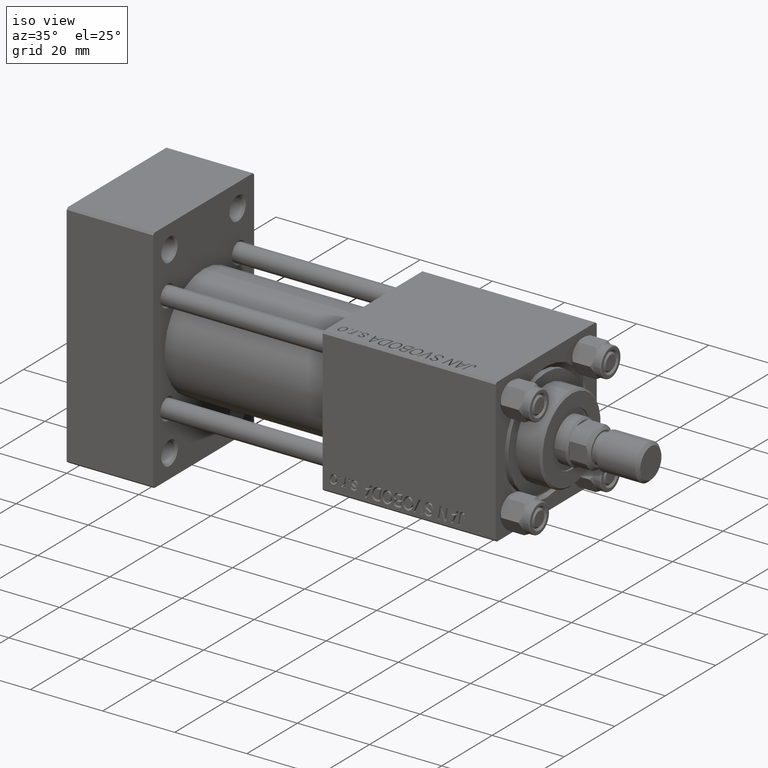
[diagram: clean part render]
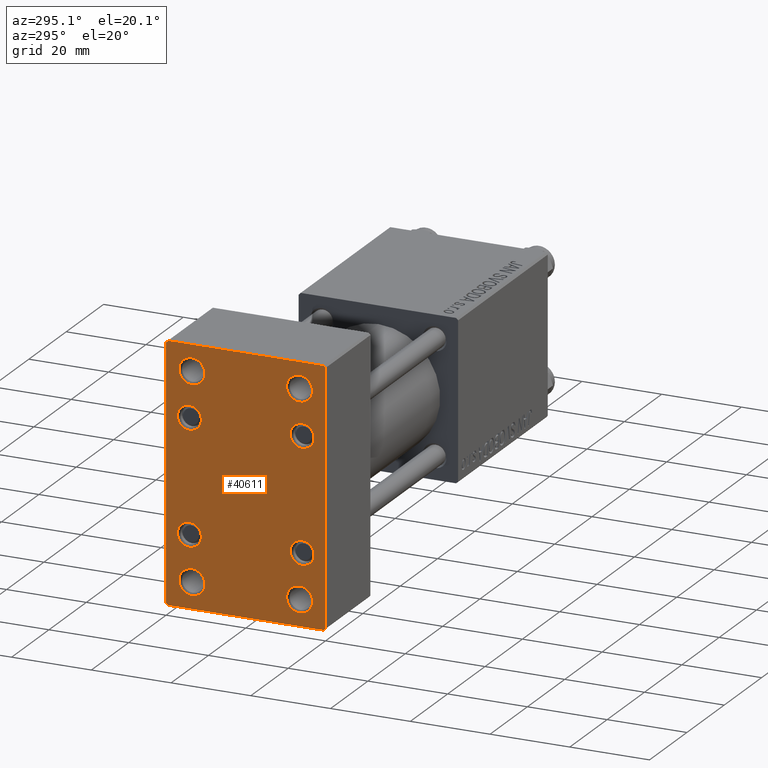
[diagram: tour spotlight — one face highlighted and labeled with its STEP entity id]
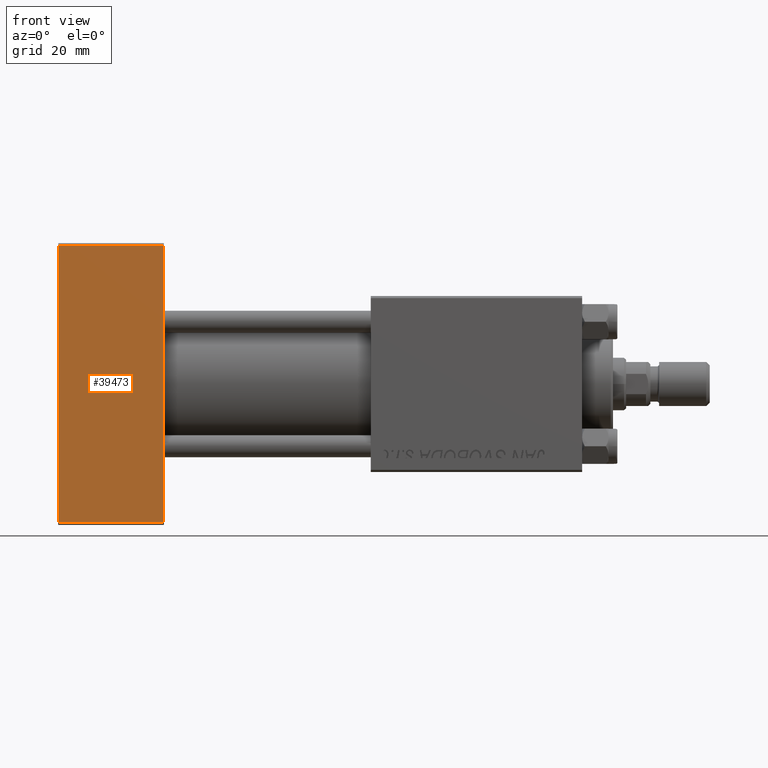
[diagram: tour spotlight — one face highlighted and labeled with its STEP entity id]
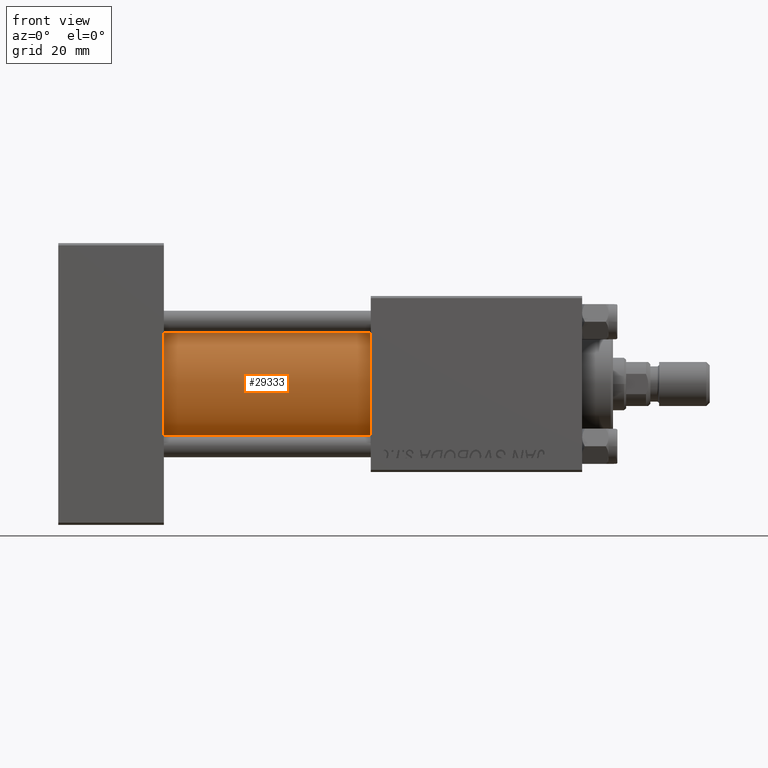
[diagram: tour spotlight — one face highlighted and labeled with its STEP entity id]
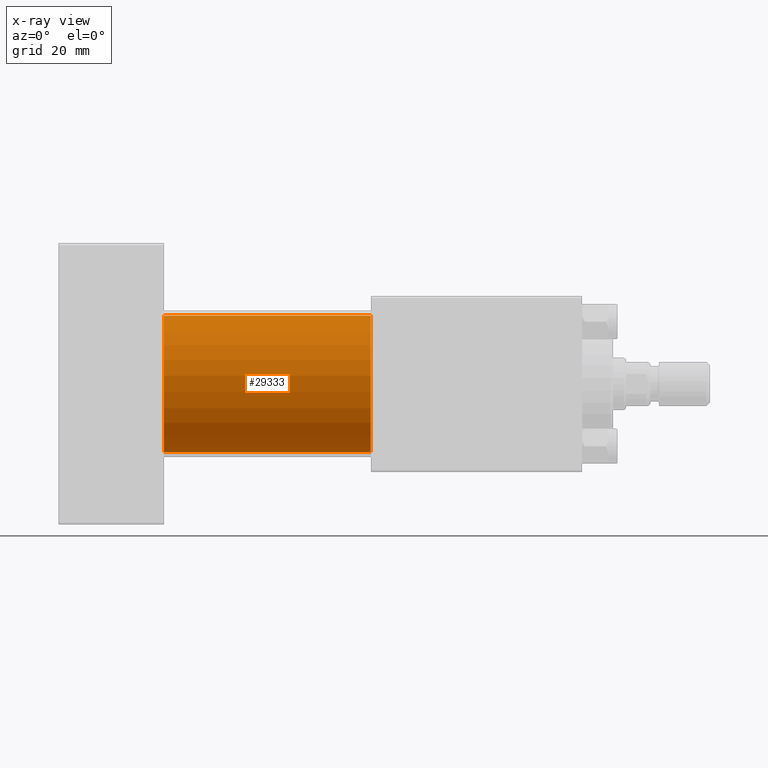
[diagram: x-ray of the same camera — body ghosted, this tour face saturated]
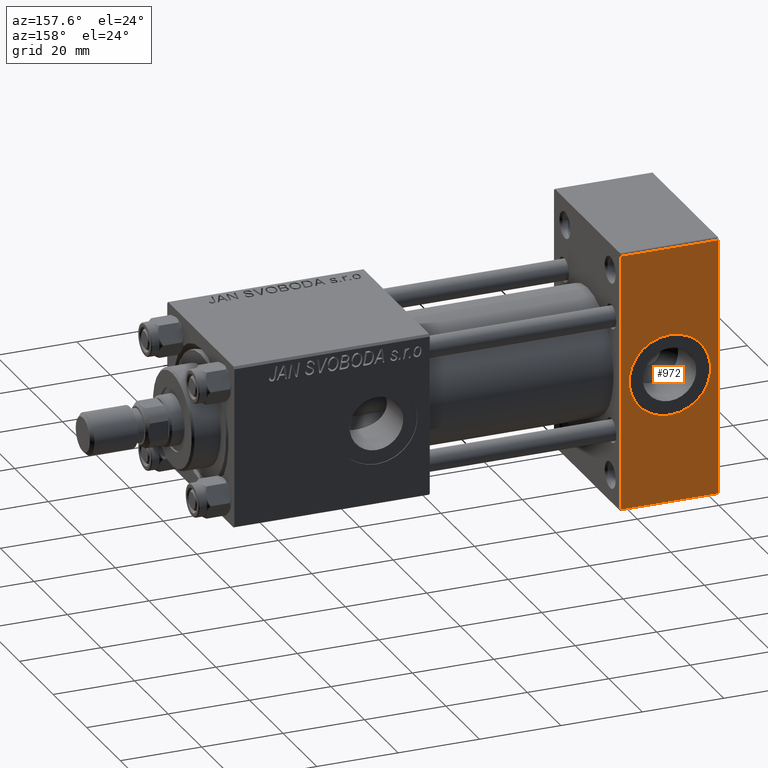
[diagram: tour spotlight — one face highlighted and labeled with its STEP entity id]
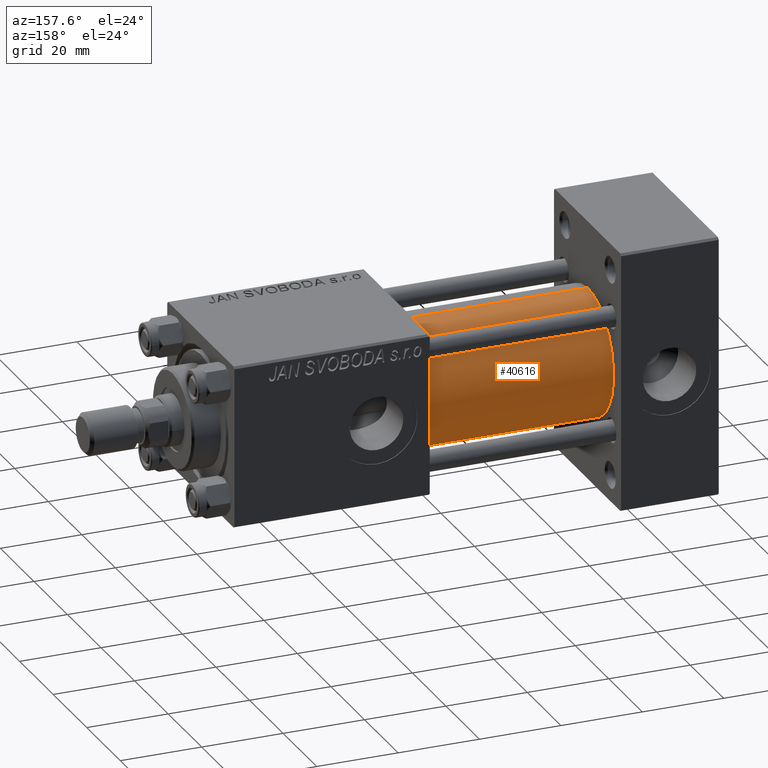
[diagram: tour spotlight — one face highlighted and labeled with its STEP entity id]
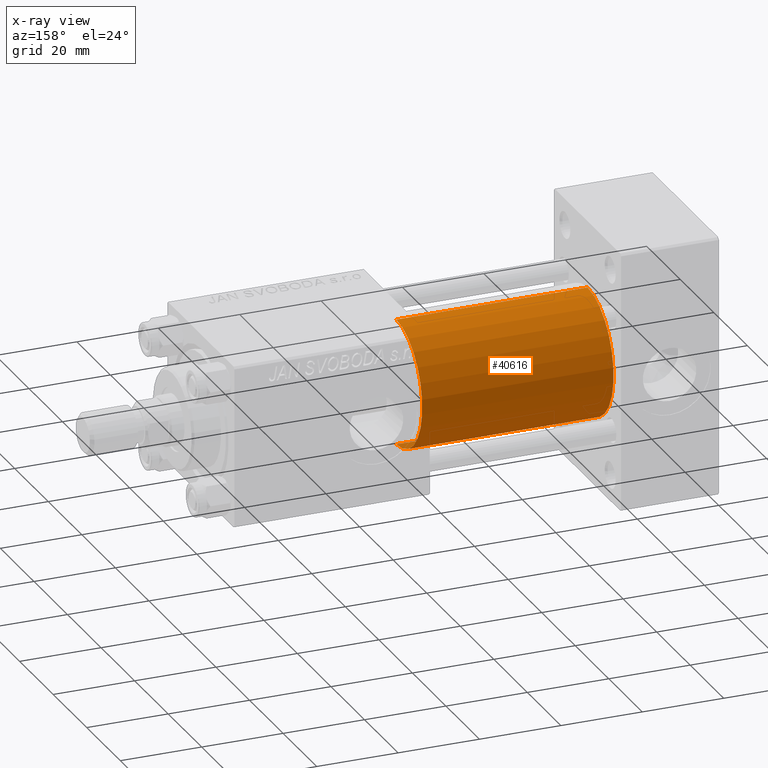
[diagram: x-ray of the same camera — body ghosted, this tour face saturated]
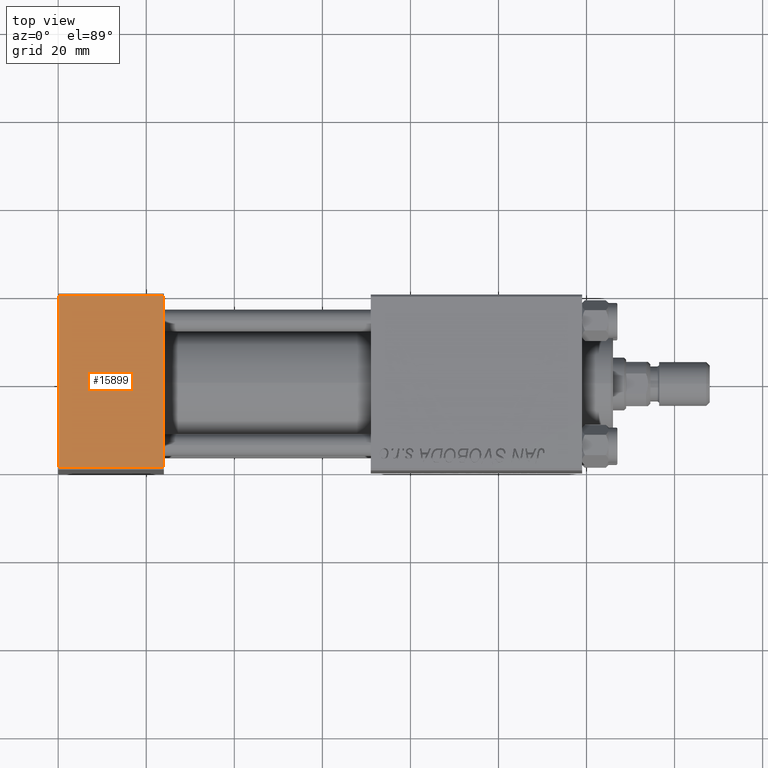
[diagram: tour spotlight — one face highlighted and labeled with its STEP entity id]
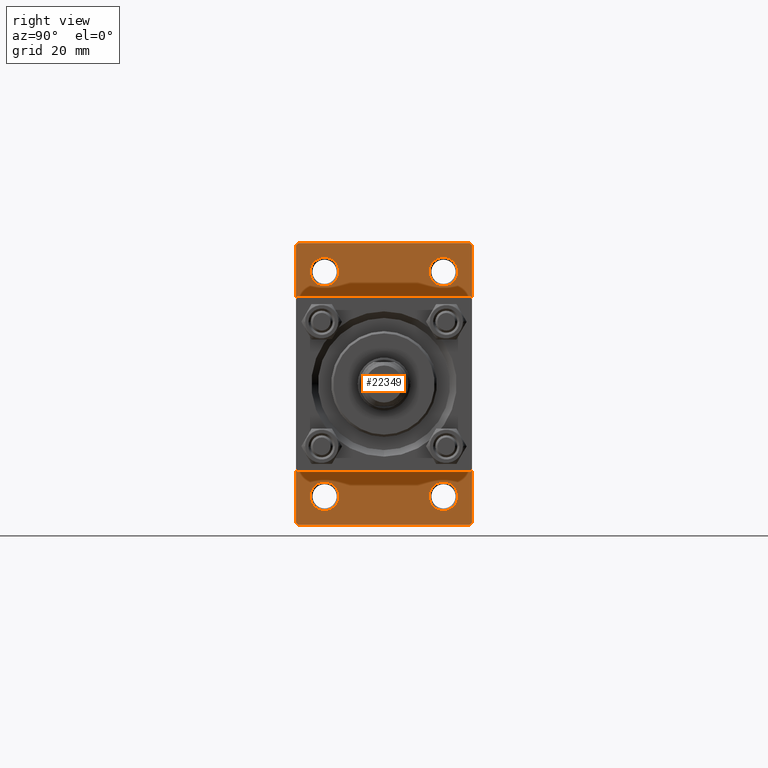
[diagram: tour spotlight — one face highlighted and labeled with its STEP entity id]
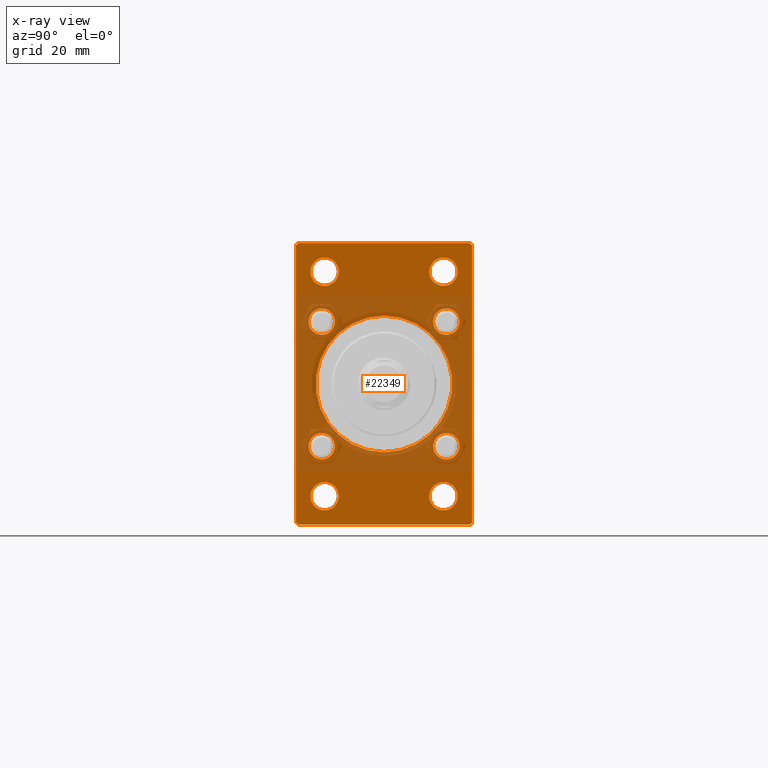
[diagram: x-ray of the same camera — body ghosted, this tour face saturated]
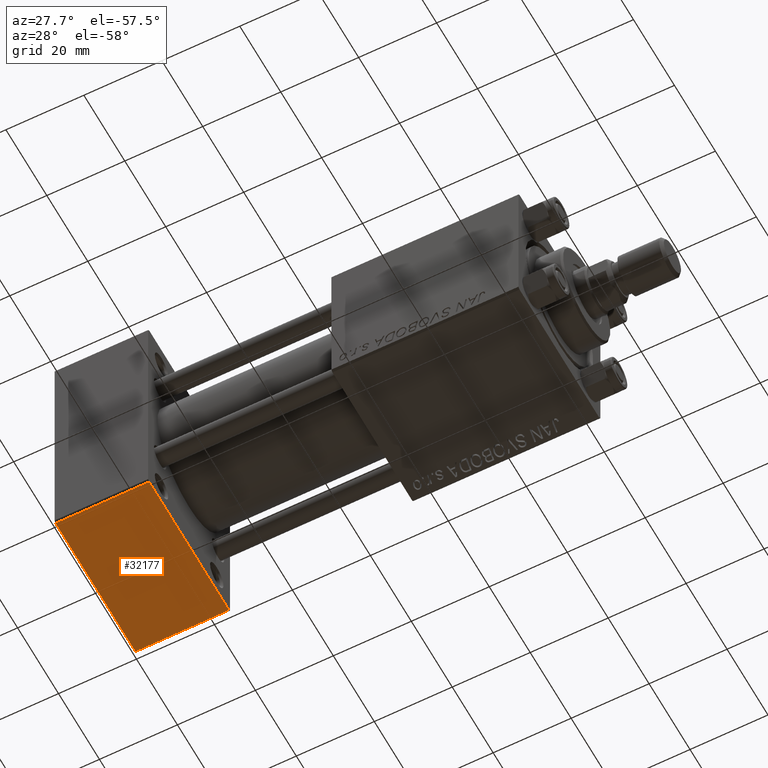
[diagram: tour spotlight — one face highlighted and labeled with its STEP entity id]
A machine part: a face-by-face anatomy tour. The part has 1150 B-rep faces; the first image is the clean iso view, then the 8 largest visible faces are spotlighted one at a time (largest first), each with its STEP entity span.

Face 1 — auxiliary view, entity #40611. In plain terms, the highlighted planar face has unit normal (-1, 0, 0).
Definition (entity closure, byte-faithful):
#28 = EDGE_CURVE ( 'NONE', #2555, #29243, #50282, .T. ) ;
#54 = CARTESIAN_POINT ( 'NONE',  ( 0.000000000000000000, -20.00000000000000355, 32.00000000000000000 ) ) ;
#216 = VECTOR ( 'NONE', #16644, 1000.000000000000000 ) ;
#510 = ORIENTED_EDGE ( 'NONE', *, *, #35589, .T. ) ;
#817 = EDGE_CURVE ( 'NONE', #23453, #46362, #15503, .T. ) ;
#1456 = CIRCLE ( 'NONE', #8790, 3.250000000000002665 ) ;
#1492 = VERTEX_POINT ( 'NONE', #47286 ) ;
#1557 = DIRECTION ( 'NONE',  ( 1.000000000000000000, 0.000000000000000000, 0.000000000000000000 ) ) ;
#1734 = ORIENTED_EDGE ( 'NONE', *, *, #15896, .T. ) ;
#1801 = DIRECTION ( 'NONE',  ( 0.000000000000000000, 0.000000000000000000, 1.000000000000000000 ) ) ;
#2202 = VERTEX_POINT ( 'NONE', #45357 ) ;
#2349 = CARTESIAN_POINT ( 'NONE',  ( 0.000000000000000000, 14.14999999999999858, 14.15000000000000036 ) ) ;
#2501 = VERTEX_POINT ( 'NONE', #36397 ) ;
#2555 = VERTEX_POINT ( 'NONE', #13954 ) ;
#2707 = AXIS2_PLACEMENT_3D ( 'NONE', #42704, #15449, #11110 ) ;
#2826 = AXIS2_PLACEMENT_3D ( 'NONE', #2349, #13298, #21978 ) ;
#3440 = ORIENTED_EDGE ( 'NONE', *, *, #21072, .T. ) ;
#3792 = FACE_BOUND ( 'NONE', #44894, .T. ) ;
#3803 = VECTOR ( 'NONE', #31599, 1000.000000000000000 ) ;
#3827 = DIRECTION ( 'NONE',  ( 1.000000000000000000, 0.000000000000000000, 0.000000000000000000 ) ) ;
#4565 = DIRECTION ( 'NONE',  ( 1.000000000000000000, 0.000000000000000000, 0.000000000000000000 ) ) ;
#5104 = CIRCLE ( 'NONE', #49048, 3.000000000000004441 ) ;
#5395 = CARTESIAN_POINT ( 'NONE',  ( 0.000000000000000000, 13.50000000000000178, 22.24999999999999645 ) ) ;
#5896 = CARTESIAN_POINT ( 'NONE',  ( 0.000000000000000000, -13.49999999999999822, 25.50000000000000000 ) ) ;
#6002 = DIRECTION ( 'NONE',  ( 0.000000000000000000, 0.000000000000000000, 1.000000000000000000 ) ) ;
#6041 = ORIENTED_EDGE ( 'NONE', *, *, #23866, .T. ) ;
#6601 = DIRECTION ( 'NONE',  ( 0.000000000000000000, -1.000000000000000000, 0.000000000000000000 ) ) ;
#6732 = ORIENTED_EDGE ( 'NONE', *, *, #14377, .T. ) ;
#6744 = VERTEX_POINT ( 'NONE', #42043 ) ;
#6770 = CARTESIAN_POINT ( 'NONE',  ( 0.000000000000000000, 14.14999999999999858, -14.15000000000000036 ) ) ;
#6810 = CARTESIAN_POINT ( 'NONE',  ( 0.000000000000000000, -13.49999999999999822, 25.50000000000000000 ) ) ;
#6875 = DIRECTION ( 'NONE',  ( 0.000000000000000000, 0.000000000000000000, 1.000000000000000000 ) ) ;
#6921 = EDGE_CURVE ( 'NONE', #44942, #20786, #8245, .T. ) ;
#6993 = VERTEX_POINT ( 'NONE', #27805 ) ;
#7007 = CIRCLE ( 'NONE', #17589, 3.000000000000000888 ) ;
#7166 = EDGE_LOOP ( 'NONE', ( #46732, #6732 ) ) ;
#7374 = CARTESIAN_POINT ( 'NONE',  ( 0.000000000000000000, -14.14999999999999503, 14.15000000000000391 ) ) ;
#7863 = FACE_BOUND ( 'NONE', #10355, .T. ) ;
#7906 = LINE ( 'NONE', #31842, #3803 ) ;
#8041 = VERTEX_POINT ( 'NONE', #32119 ) ;
#8072 = CARTESIAN_POINT ( 'NONE',  ( 0.000000000000000000, -13.49999999999999822, -22.24999999999999645 ) ) ;
#8245 = CIRCLE ( 'NONE', #30230, 3.250000000000002665 ) ;
#8681 = DIRECTION ( 'NONE',  ( 1.000000000000000000, 0.000000000000000000, 0.000000000000000000 ) ) ;
#8790 = AXIS2_PLACEMENT_3D ( 'NONE', #40277, #36464, #1801 ) ;
#9041 = CIRCLE ( 'NONE', #28460, 3.250000000000002665 ) ;
#9325 = VERTEX_POINT ( 'NONE', #8072 ) ;
#9457 = VECTOR ( 'NONE', #37315, 1000.000000000000000 ) ;
#9607 = PLANE ( 'NONE',  #17063 ) ;
#9820 = DIRECTION ( 'NONE',  ( 1.000000000000000000, 0.000000000000000000, 0.000000000000000000 ) ) ;
#10114 = DIRECTION ( 'NONE',  ( 0.000000000000000000, 0.000000000000000000, 1.000000000000000000 ) ) ;
#10355 = EDGE_LOOP ( 'NONE', ( #6041, #11621 ) ) ;
#10432 = DIRECTION ( 'NONE',  ( 1.000000000000000000, 0.000000000000000000, 0.000000000000000000 ) ) ;
#10540 = EDGE_CURVE ( 'NONE', #42633, #46362, #13315, .T. ) ;
#10605 = DIRECTION ( 'NONE',  ( 0.000000000000000000, -0.7071067811865378028, 0.7071067811865573427 ) ) ;
#10609 = ORIENTED_EDGE ( 'NONE', *, *, #14088, .T. ) ;
#10639 = ORIENTED_EDGE ( 'NONE', *, *, #32601, .T. ) ;
#10898 = AXIS2_PLACEMENT_3D ( 'NONE', #43837, #8681, #20913 ) ;
#11110 = DIRECTION ( 'NONE',  ( 0.000000000000000000, 0.000000000000000000, 1.000000000000000000 ) ) ;
#11485 = VERTEX_POINT ( 'NONE', #16414 ) ;
#11621 = ORIENTED_EDGE ( 'NONE', *, *, #21114, .T. ) ;
#12034 = EDGE_CURVE ( 'NONE', #45657, #6993, #25479, .T. ) ;
#12393 = ORIENTED_EDGE ( 'NONE', *, *, #40320, .T. ) ;
#12521 = CIRCLE ( 'NONE', #36948, 3.250000000000002665 ) ;
#12913 = DIRECTION ( 'NONE',  ( -1.000000000000000000, 0.000000000000000000, -0.000000000000000000 ) ) ;
#13298 = DIRECTION ( 'NONE',  ( 1.000000000000000000, 0.000000000000000000, 0.000000000000000000 ) ) ;
#13315 = LINE ( 'NONE', #14525, #216 ) ;
#13411 = ORIENTED_EDGE ( 'NONE', *, *, #12034, .T. ) ;
#13815 = CARTESIAN_POINT ( 'NONE',  ( 0.000000000000000000, 13.50000000000000178, 28.75000000000000000 ) ) ;
#13826 = CARTESIAN_POINT ( 'NONE',  ( 0.000000000000000000, 13.50000000000000178, 25.50000000000000000 ) ) ;
#13857 = CARTESIAN_POINT ( 'NONE',  ( 0.000000000000000000, 19.99999999999999645, 32.00000000000000000 ) ) ;
#13954 = CARTESIAN_POINT ( 'NONE',  ( 0.000000000000000000, 19.99999999999999645, -31.50000000000000000 ) ) ;
#14088 = EDGE_CURVE ( 'NONE', #33658, #37187, #23109, .T. ) ;
#14288 = ORIENTED_EDGE ( 'NONE', *, *, #36586, .T. ) ;
#14377 = EDGE_CURVE ( 'NONE', #25133, #9325, #12521, .T. ) ;
#14525 = CARTESIAN_POINT ( 'NONE',  ( -0.000000000000000000, -25.75000000000014211, 25.74999999999978684 ) ) ;
#14844 = DIRECTION ( 'NONE',  ( 1.000000000000000000, 0.000000000000000000, 0.000000000000000000 ) ) ;
#15350 = DIRECTION ( 'NONE',  ( 0.000000000000000000, 0.000000000000000000, -1.000000000000000000 ) ) ;
#15386 = CARTESIAN_POINT ( 'NONE',  ( -0.000000000000000000, 25.74999999999986144, -25.75000000000021672 ) ) ;
#15449 = DIRECTION ( 'NONE',  ( 1.000000000000000000, 0.000000000000000000, 0.000000000000000000 ) ) ;
#15503 = LINE ( 'NONE', #37947, #23607 ) ;
#15741 = VECTOR ( 'NONE', #10605, 1000.000000000000000 ) ;
#15896 = EDGE_CURVE ( 'NONE', #41813, #2202, #28051, .T. ) ;
#16414 = CARTESIAN_POINT ( 'NONE',  ( 0.000000000000000000, -14.14999999999999503, 11.15000000000000213 ) ) ;
#16644 = DIRECTION ( 'NONE',  ( -0.000000000000000000, 0.7071067811865426878, 0.7071067811865524577 ) ) ;
#16716 = CARTESIAN_POINT ( 'NONE',  ( 0.000000000000000000, 14.14999999999999858, -14.15000000000000036 ) ) ;
#17063 = AXIS2_PLACEMENT_3D ( 'NONE', #48324, #12913, #47576 ) ;
#17256 = ORIENTED_EDGE ( 'NONE', *, *, #20247, .T. ) ;
#17268 = FACE_BOUND ( 'NONE', #29731, .T. ) ;
#17460 = DIRECTION ( 'NONE',  ( 0.000000000000000000, 0.000000000000000000, 1.000000000000000000 ) ) ;
#17589 = AXIS2_PLACEMENT_3D ( 'NONE', #44192, #29423, #17460 ) ;
#17820 = ORIENTED_EDGE ( 'NONE', *, *, #19506, .T. ) ;
#18578 = AXIS2_PLACEMENT_3D ( 'NONE', #6770, #50073, #22320 ) ;
#18698 = CARTESIAN_POINT ( 'NONE',  ( 0.000000000000000000, -13.49999999999999822, -28.75000000000000000 ) ) ;
#19054 = EDGE_CURVE ( 'NONE', #37187, #33658, #42697, .T. ) ;
#19127 = ORIENTED_EDGE ( 'NONE', *, *, #6921, .T. ) ;
#19280 = EDGE_LOOP ( 'NONE', ( #1734, #17256 ) ) ;
#19286 = ORIENTED_EDGE ( 'NONE', *, *, #28909, .T. ) ;
#19506 = EDGE_CURVE ( 'NONE', #46562, #11485, #25590, .T. ) ;
#19520 = VECTOR ( 'NONE', #35200, 1000.000000000000114 ) ;
#20247 = EDGE_CURVE ( 'NONE', #2202, #41813, #5104, .T. ) ;
#20672 = CIRCLE ( 'NONE', #28813, 3.250000000000002665 ) ;
#20786 = VERTEX_POINT ( 'NONE', #5395 ) ;
#20858 = CARTESIAN_POINT ( 'NONE',  ( 0.000000000000000000, 14.14999999999999858, 17.15000000000000568 ) ) ;
#20913 = DIRECTION ( 'NONE',  ( 0.000000000000000000, 0.000000000000000000, 1.000000000000000000 ) ) ;
#21072 = EDGE_CURVE ( 'NONE', #2501, #6744, #29468, .T. ) ;
#21114 = EDGE_CURVE ( 'NONE', #8041, #26789, #22265, .T. ) ;
#21834 = CARTESIAN_POINT ( 'NONE',  ( 0.000000000000000000, -25.75000000000026645, -25.74999999999955591 ) ) ;
#21978 = DIRECTION ( 'NONE',  ( 0.000000000000000000, 0.000000000000000000, 1.000000000000000000 ) ) ;
#22093 = ORIENTED_EDGE ( 'NONE', *, *, #34585, .F. ) ;
#22110 = DIRECTION ( 'NONE',  ( 1.000000000000000000, 0.000000000000000000, 0.000000000000000000 ) ) ;
#22241 = DIRECTION ( 'NONE',  ( 1.000000000000000000, 0.000000000000000000, 0.000000000000000000 ) ) ;
#22265 = CIRCLE ( 'NONE', #2707, 3.250000000000002665 ) ;
#22320 = DIRECTION ( 'NONE',  ( 0.000000000000000000, 0.000000000000000000, 1.000000000000000000 ) ) ;
#22428 = ORIENTED_EDGE ( 'NONE', *, *, #50403, .T. ) ;
#22749 = DIRECTION ( 'NONE',  ( 0.000000000000000000, 0.000000000000000000, 1.000000000000000000 ) ) ;
#23109 = CIRCLE ( 'NONE', #10898, 3.000000000000000888 ) ;
#23290 = CARTESIAN_POINT ( 'NONE',  ( 0.000000000000000000, 19.49999999999999645, -31.99999999999999289 ) ) ;
#23425 = FACE_BOUND ( 'NONE', #19280, .T. ) ;
#23453 = VERTEX_POINT ( 'NONE', #34724 ) ;
#23607 = VECTOR ( 'NONE', #6601, 1000.000000000000000 ) ;
#23733 = LINE ( 'NONE', #30876, #19520 ) ;
#23866 = EDGE_CURVE ( 'NONE', #26789, #8041, #20672, .T. ) ;
#24021 = VERTEX_POINT ( 'NONE', #24550 ) ;
#24550 = CARTESIAN_POINT ( 'NONE',  ( 0.000000000000000000, -13.49999999999999822, 28.75000000000000000 ) ) ;
#24993 = VECTOR ( 'NONE', #15350, 1000.000000000000000 ) ;
#25133 = VERTEX_POINT ( 'NONE', #18698 ) ;
#25479 = CIRCLE ( 'NONE', #35250, 3.000000000000004441 ) ;
#25506 = DIRECTION ( 'NONE',  ( 0.000000000000000000, 0.000000000000000000, 1.000000000000000000 ) ) ;
#25557 = DIRECTION ( 'NONE',  ( 0.000000000000000000, 0.000000000000000000, 1.000000000000000000 ) ) ;
#25590 = CIRCLE ( 'NONE', #46759, 3.000000000000000888 ) ;
#25690 = CARTESIAN_POINT ( 'NONE',  ( 0.000000000000000000, 13.50000000000000178, -22.24999999999999645 ) ) ;
#25939 = ORIENTED_EDGE ( 'NONE', *, *, #19054, .T. ) ;
#26493 = DIRECTION ( 'NONE',  ( 0.000000000000000000, 0.000000000000000000, 1.000000000000000000 ) ) ;
#26789 = VERTEX_POINT ( 'NONE', #25690 ) ;
#27235 = FACE_BOUND ( 'NONE', #35671, .T. ) ;
#27480 = CIRCLE ( 'NONE', #40487, 3.250000000000002665 ) ;
#27805 = CARTESIAN_POINT ( 'NONE',  ( 0.000000000000000000, 14.14999999999999858, -11.14999999999999680 ) ) ;
#28051 = CIRCLE ( 'NONE', #44312, 3.000000000000004441 ) ;
#28182 = CIRCLE ( 'NONE', #36312, 3.250000000000002665 ) ;
#28460 = AXIS2_PLACEMENT_3D ( 'NONE', #6810, #22110, #10114 ) ;
#28813 = AXIS2_PLACEMENT_3D ( 'NONE', #49055, #9820, #6002 ) ;
#28871 = VERTEX_POINT ( 'NONE', #39252 ) ;
#28909 = EDGE_CURVE ( 'NONE', #29243, #2501, #7906, .T. ) ;
#29243 = VERTEX_POINT ( 'NONE', #23290 ) ;
#29423 = DIRECTION ( 'NONE',  ( 1.000000000000000000, 0.000000000000000000, 0.000000000000000000 ) ) ;
#29468 = LINE ( 'NONE', #21834, #15741 ) ;
#29731 = EDGE_LOOP ( 'NONE', ( #25939, #10609 ) ) ;
#29874 = DIRECTION ( 'NONE',  ( 0.000000000000000000, 0.000000000000000000, 1.000000000000000000 ) ) ;
#30197 = EDGE_LOOP ( 'NONE', ( #17820, #36429 ) ) ;
#30230 = AXIS2_PLACEMENT_3D ( 'NONE', #33447, #22241, #29874 ) ;
#30876 = CARTESIAN_POINT ( 'NONE',  ( -0.000000000000000000, 25.75000000000000000, 25.75000000000000000 ) ) ;
#30995 = ORIENTED_EDGE ( 'NONE', *, *, #44344, .T. ) ;
#31147 = EDGE_CURVE ( 'NONE', #11485, #46562, #7007, .T. ) ;
#31599 = DIRECTION ( 'NONE',  ( 0.000000000000000000, -1.000000000000000000, 0.000000000000000000 ) ) ;
#31842 = CARTESIAN_POINT ( 'NONE',  ( 0.000000000000000000, 19.99999999999999645, -31.99999999999999289 ) ) ;
#32041 = FACE_BOUND ( 'NONE', #41547, .T. ) ;
#32119 = CARTESIAN_POINT ( 'NONE',  ( 0.000000000000000000, 13.50000000000000178, -28.75000000000000000 ) ) ;
#32315 = DIRECTION ( 'NONE',  ( 0.000000000000000000, 0.000000000000000000, 1.000000000000000000 ) ) ;
#32411 = CIRCLE ( 'NONE', #18578, 3.000000000000004441 ) ;
#32601 = EDGE_CURVE ( 'NONE', #1492, #24021, #28182, .T. ) ;
#32796 = FACE_OUTER_BOUND ( 'NONE', #34751, .T. ) ;
#32821 = CARTESIAN_POINT ( 'NONE',  ( 0.000000000000000000, -13.49999999999999822, -25.50000000000000000 ) ) ;
#32952 = DIRECTION ( 'NONE',  ( 1.000000000000000000, 0.000000000000000000, 0.000000000000000000 ) ) ;
#33447 = CARTESIAN_POINT ( 'NONE',  ( 0.000000000000000000, 13.50000000000000178, 25.50000000000000000 ) ) ;
#33658 = VERTEX_POINT ( 'NONE', #49204 ) ;
#34585 = EDGE_CURVE ( 'NONE', #42633, #6744, #42352, .T. ) ;
#34724 = CARTESIAN_POINT ( 'NONE',  ( 0.000000000000000000, 19.49999999999999645, 32.00000000000000000 ) ) ;
#34751 = EDGE_LOOP ( 'NONE', ( #22428, #47131, #19286, #3440, #22093, #48437, #47617, #12393 ) ) ;
#35200 = DIRECTION ( 'NONE',  ( 0.000000000000000000, 0.7071067811865474617, -0.7071067811865474617 ) ) ;
#35250 = AXIS2_PLACEMENT_3D ( 'NONE', #16716, #3827, #39000 ) ;
#35589 = EDGE_CURVE ( 'NONE', #20786, #44942, #27480, .T. ) ;
#35671 = EDGE_LOOP ( 'NONE', ( #30995, #10639 ) ) ;
#36312 = AXIS2_PLACEMENT_3D ( 'NONE', #5896, #1557, #25506 ) ;
#36397 = CARTESIAN_POINT ( 'NONE',  ( 0.000000000000000000, -19.49999999999999645, -31.99999999999999289 ) ) ;
#36429 = ORIENTED_EDGE ( 'NONE', *, *, #31147, .T. ) ;
#36464 = DIRECTION ( 'NONE',  ( 1.000000000000000000, 0.000000000000000000, 0.000000000000000000 ) ) ;
#36586 = EDGE_CURVE ( 'NONE', #6993, #45657, #32411, .T. ) ;
#36819 = EDGE_CURVE ( 'NONE', #9325, #25133, #1456, .T. ) ;
#36948 = AXIS2_PLACEMENT_3D ( 'NONE', #32821, #4565, #32315 ) ;
#37187 = VERTEX_POINT ( 'NONE', #20858 ) ;
#37315 = DIRECTION ( 'NONE',  ( 0.000000000000000000, 0.000000000000000000, -1.000000000000000000 ) ) ;
#37947 = CARTESIAN_POINT ( 'NONE',  ( 0.000000000000000000, 19.99999999999999645, 32.00000000000000000 ) ) ;
#38968 = FACE_BOUND ( 'NONE', #30197, .T. ) ;
#39000 = DIRECTION ( 'NONE',  ( 0.000000000000000000, 0.000000000000000000, 1.000000000000000000 ) ) ;
#39252 = CARTESIAN_POINT ( 'NONE',  ( 0.000000000000000000, 19.99999999999999645, 31.50000000000000000 ) ) ;
#40277 = CARTESIAN_POINT ( 'NONE',  ( 0.000000000000000000, -13.49999999999999822, -25.50000000000000000 ) ) ;
#40320 = EDGE_CURVE ( 'NONE', #23453, #28871, #23733, .T. ) ;
#40487 = AXIS2_PLACEMENT_3D ( 'NONE', #13826, #32952, #25557 ) ;
#40611 = ADVANCED_FACE ( 'NONE', ( #3792, #27235, #42775, #7863, #38968, #23425, #32041, #17268, #32796 ), #9607, .T. ) ;
#41198 = CARTESIAN_POINT ( 'NONE',  ( 0.000000000000000000, -14.14999999999999503, -11.15000000000000036 ) ) ;
#41547 = EDGE_LOOP ( 'NONE', ( #14288, #13411 ) ) ;
#41813 = VERTEX_POINT ( 'NONE', #41198 ) ;
#42043 = CARTESIAN_POINT ( 'NONE',  ( 0.000000000000000000, -20.00000000000000355, -31.49999999999997158 ) ) ;
#42286 = DIRECTION ( 'NONE',  ( 1.000000000000000000, 0.000000000000000000, 0.000000000000000000 ) ) ;
#42352 = LINE ( 'NONE', #54, #24993 ) ;
#42633 = VERTEX_POINT ( 'NONE', #48824 ) ;
#42697 = CIRCLE ( 'NONE', #2826, 3.000000000000000888 ) ;
#42704 = CARTESIAN_POINT ( 'NONE',  ( 0.000000000000000000, 13.50000000000000178, -25.50000000000000000 ) ) ;
#42775 = FACE_BOUND ( 'NONE', #7166, .T. ) ;
#43017 = CARTESIAN_POINT ( 'NONE',  ( 0.000000000000000000, -14.14999999999999503, 17.15000000000000924 ) ) ;
#43837 = CARTESIAN_POINT ( 'NONE',  ( 0.000000000000000000, 14.14999999999999858, 14.15000000000000036 ) ) ;
#44192 = CARTESIAN_POINT ( 'NONE',  ( 0.000000000000000000, -14.14999999999999503, 14.15000000000000391 ) ) ;
#44312 = AXIS2_PLACEMENT_3D ( 'NONE', #49746, #14844, #22749 ) ;
#44344 = EDGE_CURVE ( 'NONE', #24021, #1492, #9041, .T. ) ;
#44590 = CARTESIAN_POINT ( 'NONE',  ( 0.000000000000000000, -14.14999999999999503, -14.15000000000000391 ) ) ;
#44695 = LINE ( 'NONE', #13857, #9457 ) ;
#44894 = EDGE_LOOP ( 'NONE', ( #19127, #510 ) ) ;
#44942 = VERTEX_POINT ( 'NONE', #13815 ) ;
#45357 = CARTESIAN_POINT ( 'NONE',  ( 0.000000000000000000, -14.14999999999999503, -17.15000000000000924 ) ) ;
#45528 = VECTOR ( 'NONE', #46698, 1000.000000000000000 ) ;
#45657 = VERTEX_POINT ( 'NONE', #46088 ) ;
#46088 = CARTESIAN_POINT ( 'NONE',  ( 0.000000000000000000, 14.14999999999999858, -17.15000000000000568 ) ) ;
#46362 = VERTEX_POINT ( 'NONE', #48459 ) ;
#46562 = VERTEX_POINT ( 'NONE', #43017 ) ;
#46698 = DIRECTION ( 'NONE',  ( -0.000000000000000000, -0.7071067811865524577, -0.7071067811865426878 ) ) ;
#46732 = ORIENTED_EDGE ( 'NONE', *, *, #36819, .T. ) ;
#46759 = AXIS2_PLACEMENT_3D ( 'NONE', #7374, #10432, #6875 ) ;
#47131 = ORIENTED_EDGE ( 'NONE', *, *, #28, .T. ) ;
#47286 = CARTESIAN_POINT ( 'NONE',  ( 0.000000000000000000, -13.49999999999999822, 22.24999999999999645 ) ) ;
#47576 = DIRECTION ( 'NONE',  ( -0.000000000000000000, 0.000000000000000000, 1.000000000000000000 ) ) ;
#47617 = ORIENTED_EDGE ( 'NONE', *, *, #817, .F. ) ;
#48324 = CARTESIAN_POINT ( 'NONE',  ( 0.000000000000000000, 0.000000000000000000, 0.000000000000000000 ) ) ;
#48437 = ORIENTED_EDGE ( 'NONE', *, *, #10540, .T. ) ;
#48459 = CARTESIAN_POINT ( 'NONE',  ( 0.000000000000000000, -19.50000000000001776, 32.00000000000000000 ) ) ;
#48824 = CARTESIAN_POINT ( 'NONE',  ( 0.000000000000000000, -20.00000000000000355, 31.50000000000000711 ) ) ;
#49048 = AXIS2_PLACEMENT_3D ( 'NONE', #44590, #42286, #26493 ) ;
#49055 = CARTESIAN_POINT ( 'NONE',  ( 0.000000000000000000, 13.50000000000000178, -25.50000000000000000 ) ) ;
#49204 = CARTESIAN_POINT ( 'NONE',  ( 0.000000000000000000, 14.14999999999999858, 11.14999999999999858 ) ) ;
#49746 = CARTESIAN_POINT ( 'NONE',  ( 0.000000000000000000, -14.14999999999999503, -14.15000000000000391 ) ) ;
#50073 = DIRECTION ( 'NONE',  ( 1.000000000000000000, 0.000000000000000000, 0.000000000000000000 ) ) ;
#50282 = LINE ( 'NONE', #15386, #45528 ) ;
#50403 = EDGE_CURVE ( 'NONE', #28871, #2555, #44695, .T. ) ;

Face 2 — front view, entity #39473. In plain terms, the highlighted planar face has unit normal (0, 1, 0).
Definition (entity closure, byte-faithful):
#54 = CARTESIAN_POINT ( 'NONE',  ( 0.000000000000000000, -20.00000000000000355, 32.00000000000000000 ) ) ;
#994 = CARTESIAN_POINT ( 'NONE',  ( 24.00000000000000000, -20.00000000000000355, -31.49999999999997158 ) ) ;
#2521 = PLANE ( 'NONE',  #29206 ) ;
#4468 = VECTOR ( 'NONE', #9173, 1000.000000000000000 ) ;
#6744 = VERTEX_POINT ( 'NONE', #42043 ) ;
#7776 = LINE ( 'NONE', #12093, #34281 ) ;
#9173 = DIRECTION ( 'NONE',  ( -1.000000000000000000, 0.000000000000000000, 0.000000000000000000 ) ) ;
#10777 = VERTEX_POINT ( 'NONE', #43775 ) ;
#11599 = DIRECTION ( 'NONE',  ( 0.000000000000000000, 0.000000000000000000, -1.000000000000000000 ) ) ;
#12093 = CARTESIAN_POINT ( 'NONE',  ( 24.00000000000000000, -20.00000000000000355, 32.00000000000000000 ) ) ;
#12588 = VECTOR ( 'NONE', #39972, 1000.000000000000000 ) ;
#15350 = DIRECTION ( 'NONE',  ( 0.000000000000000000, 0.000000000000000000, -1.000000000000000000 ) ) ;
#15997 = EDGE_CURVE ( 'NONE', #20715, #42633, #16827, .T. ) ;
#16827 = LINE ( 'NONE', #20161, #4468 ) ;
#19084 = CARTESIAN_POINT ( 'NONE',  ( 24.00000000000000000, -20.00000000000000355, 32.00000000000000000 ) ) ;
#20161 = CARTESIAN_POINT ( 'NONE',  ( 24.00000000000000000, -20.00000000000000355, 31.50000000000000711 ) ) ;
#20715 = VERTEX_POINT ( 'NONE', #25013 ) ;
#23457 = ORIENTED_EDGE ( 'NONE', *, *, #15997, .T. ) ;
#24139 = EDGE_LOOP ( 'NONE', ( #38571, #35750, #48673, #23457 ) ) ;
#24661 = EDGE_CURVE ( 'NONE', #6744, #10777, #24677, .T. ) ;
#24677 = LINE ( 'NONE', #994, #12588 ) ;
#24993 = VECTOR ( 'NONE', #15350, 1000.000000000000000 ) ;
#25013 = CARTESIAN_POINT ( 'NONE',  ( 24.00000000000000000, -20.00000000000000355, 31.50000000000000711 ) ) ;
#29206 = AXIS2_PLACEMENT_3D ( 'NONE', #19084, #49653, #41758 ) ;
#34281 = VECTOR ( 'NONE', #11599, 1000.000000000000000 ) ;
#34585 = EDGE_CURVE ( 'NONE', #42633, #6744, #42352, .T. ) ;
#35750 = ORIENTED_EDGE ( 'NONE', *, *, #24661, .T. ) ;
#38571 = ORIENTED_EDGE ( 'NONE', *, *, #34585, .T. ) ;
#39473 = ADVANCED_FACE ( 'NONE', ( #45829 ), #2521, .F. ) ;
#39972 = DIRECTION ( 'NONE',  ( 1.000000000000000000, 0.000000000000000000, 0.000000000000000000 ) ) ;
#41758 = DIRECTION ( 'NONE',  ( 0.000000000000000000, -0.000000000000000000, 1.000000000000000000 ) ) ;
#42043 = CARTESIAN_POINT ( 'NONE',  ( 0.000000000000000000, -20.00000000000000355, -31.49999999999997158 ) ) ;
#42352 = LINE ( 'NONE', #54, #24993 ) ;
#42633 = VERTEX_POINT ( 'NONE', #48824 ) ;
#43775 = CARTESIAN_POINT ( 'NONE',  ( 24.00000000000000000, -20.00000000000000355, -31.49999999999997158 ) ) ;
#45829 = FACE_OUTER_BOUND ( 'NONE', #24139, .T. ) ;
#48367 = EDGE_CURVE ( 'NONE', #20715, #10777, #7776, .T. ) ;
#48673 = ORIENTED_EDGE ( 'NONE', *, *, #48367, .F. ) ;
#48824 = CARTESIAN_POINT ( 'NONE',  ( 0.000000000000000000, -20.00000000000000355, 31.50000000000000711 ) ) ;
#49653 = DIRECTION ( 'NONE',  ( -0.000000000000000000, 1.000000000000000000, 0.000000000000000000 ) ) ;

Face 3 — front view, entity #29333. An x-ray twin of the same camera follows (body ghosted, this face saturated) — the face is partly hidden behind the body. In plain terms, the highlighted cylindrical surface (partial cylindrical patch) has radius 15.5 mm, axis along (-1, -0, -0).
Definition (entity closure, byte-faithful):
#948 = VERTEX_POINT ( 'NONE', #39195 ) ;
#1352 = CARTESIAN_POINT ( 'NONE',  ( 24.00000000000000000, -7.038826752868131828E-16, -15.50000000000000000 ) ) ;
#1481 = CARTESIAN_POINT ( 'NONE',  ( 24.00000000000000000, -2.602085213965210642E-15, 15.50000000000000000 ) ) ;
#2102 = CARTESIAN_POINT ( 'NONE',  ( 24.00000000000000000, -2.602085213965210642E-15, 0.000000000000000000 ) ) ;
#2988 = DIRECTION ( 'NONE',  ( 0.000000000000000000, 0.000000000000000000, -1.000000000000000000 ) ) ;
#5990 = CIRCLE ( 'NONE', #14103, 15.50000000000000000 ) ;
#7328 = DIRECTION ( 'NONE',  ( -1.000000000000000000, -0.000000000000000000, -0.000000000000000000 ) ) ;
#8037 = CARTESIAN_POINT ( 'NONE',  ( 71.00000000000001421, -7.038826752868131828E-16, -15.50000000000000000 ) ) ;
#9209 = CARTESIAN_POINT ( 'NONE',  ( 71.00000000000001421, -2.602085213965210642E-15, 0.000000000000000000 ) ) ;
#10006 = EDGE_CURVE ( 'NONE', #948, #21160, #37609, .T. ) ;
#10788 = VERTEX_POINT ( 'NONE', #1481 ) ;
#10889 = LINE ( 'NONE', #11391, #18292 ) ;
#11391 = CARTESIAN_POINT ( 'NONE',  ( 71.00000000000001421, -7.038826752868131828E-16, -15.50000000000000000 ) ) ;
#12290 = FACE_OUTER_BOUND ( 'NONE', #48504, .T. ) ;
#12772 = EDGE_CURVE ( 'NONE', #10788, #42260, #5990, .T. ) ;
#14103 = AXIS2_PLACEMENT_3D ( 'NONE', #2102, #49494, #41847 ) ;
#15644 = AXIS2_PLACEMENT_3D ( 'NONE', #37903, #38170, #2988 ) ;
#15989 = AXIS2_PLACEMENT_3D ( 'NONE', #9209, #32407, #44374 ) ;
#16511 = EDGE_CURVE ( 'NONE', #21160, #42260, #10889, .T. ) ;
#18292 = VECTOR ( 'NONE', #7328, 1000.000000000000000 ) ;
#21078 = DIRECTION ( 'NONE',  ( -1.000000000000000000, -0.000000000000000000, -0.000000000000000000 ) ) ;
#21160 = VERTEX_POINT ( 'NONE', #8037 ) ;
#23714 = ORIENTED_EDGE ( 'NONE', *, *, #40615, .T. ) ;
#28208 = LINE ( 'NONE', #33056, #30054 ) ;
#29333 = ADVANCED_FACE ( 'NONE', ( #12290 ), #47689, .T. ) ;
#29425 = ORIENTED_EDGE ( 'NONE', *, *, #16511, .F. ) ;
#30054 = VECTOR ( 'NONE', #21078, 1000.000000000000000 ) ;
#30941 = ORIENTED_EDGE ( 'NONE', *, *, #10006, .F. ) ;
#32407 = DIRECTION ( 'NONE',  ( -1.000000000000000000, -0.000000000000000000, -0.000000000000000000 ) ) ;
#33056 = CARTESIAN_POINT ( 'NONE',  ( 71.00000000000001421, -2.602085213965210642E-15, 15.50000000000000000 ) ) ;
#37609 = CIRCLE ( 'NONE', #15644, 15.50000000000000000 ) ;
#37903 = CARTESIAN_POINT ( 'NONE',  ( 71.00000000000001421, -2.602085213965210642E-15, 0.000000000000000000 ) ) ;
#38170 = DIRECTION ( 'NONE',  ( 1.000000000000000000, 0.000000000000000000, 0.000000000000000000 ) ) ;
#39045 = ORIENTED_EDGE ( 'NONE', *, *, #12772, .T. ) ;
#39195 = CARTESIAN_POINT ( 'NONE',  ( 71.00000000000001421, -2.602085213965210642E-15, 15.50000000000000000 ) ) ;
#40615 = EDGE_CURVE ( 'NONE', #948, #10788, #28208, .T. ) ;
#41847 = DIRECTION ( 'NONE',  ( 0.000000000000000000, 0.000000000000000000, 1.000000000000000000 ) ) ;
#42260 = VERTEX_POINT ( 'NONE', #1352 ) ;
#44374 = DIRECTION ( 'NONE',  ( 0.000000000000000000, 0.000000000000000000, 1.000000000000000000 ) ) ;
#47689 = CYLINDRICAL_SURFACE ( 'NONE', #15989, 15.50000000000000000 ) ;
#48504 = EDGE_LOOP ( 'NONE', ( #29425, #30941, #23714, #39045 ) ) ;
#49494 = DIRECTION ( 'NONE',  ( 1.000000000000000000, 0.000000000000000000, 0.000000000000000000 ) ) ;

Face 4 — auxiliary view, entity #972. In plain terms, the highlighted planar face has unit normal (0, 1, 0).
Definition (entity closure, byte-faithful):
#293 = EDGE_CURVE ( 'NONE', #28871, #17800, #22216, .T. ) ;
#972 = ADVANCED_FACE ( 'NONE', ( #43253, #12407 ), #4278, .T. ) ;
#1938 = AXIS2_PLACEMENT_3D ( 'NONE', #29548, #25972, #28781 ) ;
#2381 = CARTESIAN_POINT ( 'NONE',  ( 24.00000000000000000, 19.99999999999999645, 31.50000000000000000 ) ) ;
#2555 = VERTEX_POINT ( 'NONE', #13954 ) ;
#3554 = CIRCLE ( 'NONE', #1938, 10.00000000000000000 ) ;
#4278 = PLANE ( 'NONE',  #10577 ) ;
#5543 = VERTEX_POINT ( 'NONE', #49196 ) ;
#7850 = DIRECTION ( 'NONE',  ( -0.000000000000000000, 1.000000000000000000, 0.000000000000000000 ) ) ;
#9457 = VECTOR ( 'NONE', #37315, 1000.000000000000000 ) ;
#10577 = AXIS2_PLACEMENT_3D ( 'NONE', #43493, #7850, #16486 ) ;
#11175 = EDGE_CURVE ( 'NONE', #24824, #2555, #12623, .T. ) ;
#11779 = ORIENTED_EDGE ( 'NONE', *, *, #30261, .T. ) ;
#12407 = FACE_OUTER_BOUND ( 'NONE', #34513, .T. ) ;
#12623 = LINE ( 'NONE', #20283, #18991 ) ;
#13113 = AXIS2_PLACEMENT_3D ( 'NONE', #43153, #47711, #31685 ) ;
#13279 = CARTESIAN_POINT ( 'NONE',  ( 24.00000000000000000, 19.99999999999999645, 31.50000000000000000 ) ) ;
#13790 = DIRECTION ( 'NONE',  ( 1.000000000000000000, 0.000000000000000000, 0.000000000000000000 ) ) ;
#13857 = CARTESIAN_POINT ( 'NONE',  ( 0.000000000000000000, 19.99999999999999645, 32.00000000000000000 ) ) ;
#13954 = CARTESIAN_POINT ( 'NONE',  ( 0.000000000000000000, 19.99999999999999645, -31.50000000000000000 ) ) ;
#14055 = CARTESIAN_POINT ( 'NONE',  ( 24.00000000000000000, 19.99999999999999645, 32.00000000000000000 ) ) ;
#15431 = CARTESIAN_POINT ( 'NONE',  ( 24.00000000000000000, 19.99999999999999645, -31.50000000000000000 ) ) ;
#16486 = DIRECTION ( 'NONE',  ( 0.000000000000000000, -0.000000000000000000, 1.000000000000000000 ) ) ;
#17800 = VERTEX_POINT ( 'NONE', #2381 ) ;
#17913 = CIRCLE ( 'NONE', #13113, 10.00000000000000000 ) ;
#18991 = VECTOR ( 'NONE', #24605, 1000.000000000000000 ) ;
#19616 = ORIENTED_EDGE ( 'NONE', *, *, #293, .T. ) ;
#20283 = CARTESIAN_POINT ( 'NONE',  ( 24.00000000000000000, 19.99999999999999645, -31.50000000000000000 ) ) ;
#22216 = LINE ( 'NONE', #13279, #27672 ) ;
#22692 = EDGE_CURVE ( 'NONE', #5543, #47455, #3554, .T. ) ;
#24605 = DIRECTION ( 'NONE',  ( -1.000000000000000000, 0.000000000000000000, 0.000000000000000000 ) ) ;
#24824 = VERTEX_POINT ( 'NONE', #15431 ) ;
#25972 = DIRECTION ( 'NONE',  ( 0.000000000000000000, 1.000000000000000000, 0.000000000000000000 ) ) ;
#27672 = VECTOR ( 'NONE', #13790, 1000.000000000000000 ) ;
#28648 = DIRECTION ( 'NONE',  ( 0.000000000000000000, 0.000000000000000000, -1.000000000000000000 ) ) ;
#28781 = DIRECTION ( 'NONE',  ( 0.000000000000000000, 0.000000000000000000, 1.000000000000000000 ) ) ;
#28871 = VERTEX_POINT ( 'NONE', #39252 ) ;
#29548 = CARTESIAN_POINT ( 'NONE',  ( 12.00000000000000000, 19.99999999999999645, 0.000000000000000000 ) ) ;
#30261 = EDGE_CURVE ( 'NONE', #17800, #24824, #33688, .T. ) ;
#30289 = ORIENTED_EDGE ( 'NONE', *, *, #11175, .T. ) ;
#31298 = ORIENTED_EDGE ( 'NONE', *, *, #50403, .F. ) ;
#31685 = DIRECTION ( 'NONE',  ( 0.000000000000000000, 0.000000000000000000, 1.000000000000000000 ) ) ;
#32095 = ORIENTED_EDGE ( 'NONE', *, *, #44873, .F. ) ;
#33688 = LINE ( 'NONE', #14055, #38850 ) ;
#34513 = EDGE_LOOP ( 'NONE', ( #11779, #30289, #31298, #19616 ) ) ;
#37315 = DIRECTION ( 'NONE',  ( 0.000000000000000000, 0.000000000000000000, -1.000000000000000000 ) ) ;
#37403 = EDGE_LOOP ( 'NONE', ( #40859, #32095 ) ) ;
#38850 = VECTOR ( 'NONE', #28648, 1000.000000000000000 ) ;
#39252 = CARTESIAN_POINT ( 'NONE',  ( 0.000000000000000000, 19.99999999999999645, 31.50000000000000000 ) ) ;
#40859 = ORIENTED_EDGE ( 'NONE', *, *, #22692, .F. ) ;
#43153 = CARTESIAN_POINT ( 'NONE',  ( 12.00000000000000000, 19.99999999999999645, 0.000000000000000000 ) ) ;
#43253 = FACE_BOUND ( 'NONE', #37403, .T. ) ;
#43493 = CARTESIAN_POINT ( 'NONE',  ( 24.00000000000000000, 19.99999999999999645, 32.00000000000000000 ) ) ;
#44695 = LINE ( 'NONE', #13857, #9457 ) ;
#44873 = EDGE_CURVE ( 'NONE', #47455, #5543, #17913, .T. ) ;
#47455 = VERTEX_POINT ( 'NONE', #47898 ) ;
#47711 = DIRECTION ( 'NONE',  ( 0.000000000000000000, 1.000000000000000000, 0.000000000000000000 ) ) ;
#47898 = CARTESIAN_POINT ( 'NONE',  ( 12.00000000000000178, 19.99999999999999645, -10.00000000000000000 ) ) ;
#49196 = CARTESIAN_POINT ( 'NONE',  ( 12.00000000000000000, 19.99999999999999645, 10.00000000000000000 ) ) ;
#50403 = EDGE_CURVE ( 'NONE', #28871, #2555, #44695, .T. ) ;

Face 5 — auxiliary view, entity #40616. An x-ray twin of the same camera follows (body ghosted, this face saturated) — the face is partly hidden behind the body. In plain terms, the highlighted cylindrical surface (partial cylindrical patch) has radius 15.5 mm, axis along (-1, -0, -0).
Definition (entity closure, byte-faithful):
#948 = VERTEX_POINT ( 'NONE', #39195 ) ;
#1352 = CARTESIAN_POINT ( 'NONE',  ( 24.00000000000000000, -7.038826752868131828E-16, -15.50000000000000000 ) ) ;
#1481 = CARTESIAN_POINT ( 'NONE',  ( 24.00000000000000000, -2.602085213965210642E-15, 15.50000000000000000 ) ) ;
#5537 = FACE_OUTER_BOUND ( 'NONE', #39029, .T. ) ;
#6135 = CARTESIAN_POINT ( 'NONE',  ( 71.00000000000001421, -2.602085213965210642E-15, 0.000000000000000000 ) ) ;
#7328 = DIRECTION ( 'NONE',  ( -1.000000000000000000, -0.000000000000000000, -0.000000000000000000 ) ) ;
#7523 = ORIENTED_EDGE ( 'NONE', *, *, #16511, .T. ) ;
#8037 = CARTESIAN_POINT ( 'NONE',  ( 71.00000000000001421, -7.038826752868131828E-16, -15.50000000000000000 ) ) ;
#10788 = VERTEX_POINT ( 'NONE', #1481 ) ;
#10889 = LINE ( 'NONE', #11391, #18292 ) ;
#11391 = CARTESIAN_POINT ( 'NONE',  ( 71.00000000000001421, -7.038826752868131828E-16, -15.50000000000000000 ) ) ;
#12664 = CARTESIAN_POINT ( 'NONE',  ( 71.00000000000001421, -2.602085213965210642E-15, 0.000000000000000000 ) ) ;
#13620 = ORIENTED_EDGE ( 'NONE', *, *, #24049, .T. ) ;
#16511 = EDGE_CURVE ( 'NONE', #21160, #42260, #10889, .T. ) ;
#16965 = EDGE_CURVE ( 'NONE', #21160, #948, #26474, .T. ) ;
#17223 = ORIENTED_EDGE ( 'NONE', *, *, #40615, .F. ) ;
#18292 = VECTOR ( 'NONE', #7328, 1000.000000000000000 ) ;
#19627 = ORIENTED_EDGE ( 'NONE', *, *, #16965, .F. ) ;
#20730 = DIRECTION ( 'NONE',  ( 0.000000000000000000, 0.000000000000000000, 1.000000000000000000 ) ) ;
#21078 = DIRECTION ( 'NONE',  ( -1.000000000000000000, -0.000000000000000000, -0.000000000000000000 ) ) ;
#21160 = VERTEX_POINT ( 'NONE', #8037 ) ;
#21678 = DIRECTION ( 'NONE',  ( 1.000000000000000000, 0.000000000000000000, 0.000000000000000000 ) ) ;
#23961 = AXIS2_PLACEMENT_3D ( 'NONE', #36526, #25307, #20730 ) ;
#24049 = EDGE_CURVE ( 'NONE', #42260, #10788, #45926, .T. ) ;
#25307 = DIRECTION ( 'NONE',  ( 1.000000000000000000, 0.000000000000000000, 0.000000000000000000 ) ) ;
#26474 = CIRCLE ( 'NONE', #37864, 15.50000000000000000 ) ;
#27971 = DIRECTION ( 'NONE',  ( -1.000000000000000000, -0.000000000000000000, -0.000000000000000000 ) ) ;
#28208 = LINE ( 'NONE', #33056, #30054 ) ;
#30054 = VECTOR ( 'NONE', #21078, 1000.000000000000000 ) ;
#33056 = CARTESIAN_POINT ( 'NONE',  ( 71.00000000000001421, -2.602085213965210642E-15, 15.50000000000000000 ) ) ;
#36526 = CARTESIAN_POINT ( 'NONE',  ( 24.00000000000000000, -2.602085213965210642E-15, 0.000000000000000000 ) ) ;
#37222 = DIRECTION ( 'NONE',  ( 0.000000000000000000, 0.000000000000000000, -1.000000000000000000 ) ) ;
#37864 = AXIS2_PLACEMENT_3D ( 'NONE', #6135, #21678, #37222 ) ;
#39029 = EDGE_LOOP ( 'NONE', ( #19627, #7523, #13620, #17223 ) ) ;
#39195 = CARTESIAN_POINT ( 'NONE',  ( 71.00000000000001421, -2.602085213965210642E-15, 15.50000000000000000 ) ) ;
#40188 = DIRECTION ( 'NONE',  ( 0.000000000000000000, 0.000000000000000000, 1.000000000000000000 ) ) ;
#40615 = EDGE_CURVE ( 'NONE', #948, #10788, #28208, .T. ) ;
#40616 = ADVANCED_FACE ( 'NONE', ( #5537 ), #40689, .T. ) ;
#40689 = CYLINDRICAL_SURFACE ( 'NONE', #49586, 15.50000000000000000 ) ;
#42260 = VERTEX_POINT ( 'NONE', #1352 ) ;
#45926 = CIRCLE ( 'NONE', #23961, 15.50000000000000000 ) ;
#49586 = AXIS2_PLACEMENT_3D ( 'NONE', #12664, #27971, #40188 ) ;

Face 6 — top view, entity #15899. In plain terms, the highlighted planar face has unit normal (0, 0, -1).
Definition (entity closure, byte-faithful):
#551 = CARTESIAN_POINT ( 'NONE',  ( 24.00000000000000000, 19.99999999999999645, 32.00000000000000000 ) ) ;
#817 = EDGE_CURVE ( 'NONE', #23453, #46362, #15503, .T. ) ;
#1366 = ORIENTED_EDGE ( 'NONE', *, *, #817, .T. ) ;
#2606 = LINE ( 'NONE', #45407, #4118 ) ;
#3375 = FACE_OUTER_BOUND ( 'NONE', #45171, .T. ) ;
#4118 = VECTOR ( 'NONE', #49487, 1000.000000000000000 ) ;
#6426 = CARTESIAN_POINT ( 'NONE',  ( 24.00000000000000000, -19.50000000000001776, 32.00000000000000000 ) ) ;
#6601 = DIRECTION ( 'NONE',  ( 0.000000000000000000, -1.000000000000000000, 0.000000000000000000 ) ) ;
#7150 = LINE ( 'NONE', #17033, #40519 ) ;
#8919 = DIRECTION ( 'NONE',  ( 0.000000000000000000, 0.000000000000000000, -1.000000000000000000 ) ) ;
#13128 = VERTEX_POINT ( 'NONE', #26688 ) ;
#15503 = LINE ( 'NONE', #37947, #23607 ) ;
#15899 = ADVANCED_FACE ( 'NONE', ( #3375 ), #18923, .F. ) ;
#17033 = CARTESIAN_POINT ( 'NONE',  ( 0.000000000000000000, 19.49999999999999645, 32.00000000000000000 ) ) ;
#17831 = CARTESIAN_POINT ( 'NONE',  ( 24.00000000000000000, -19.50000000000001776, 32.00000000000000000 ) ) ;
#18923 = PLANE ( 'NONE',  #48384 ) ;
#20850 = VECTOR ( 'NONE', #21645, 1000.000000000000000 ) ;
#21645 = DIRECTION ( 'NONE',  ( 1.000000000000000000, 0.000000000000000000, 0.000000000000000000 ) ) ;
#23453 = VERTEX_POINT ( 'NONE', #34724 ) ;
#23607 = VECTOR ( 'NONE', #6601, 1000.000000000000000 ) ;
#23746 = DIRECTION ( 'NONE',  ( -1.000000000000000000, 0.000000000000000000, -0.000000000000000000 ) ) ;
#24220 = ORIENTED_EDGE ( 'NONE', *, *, #29744, .T. ) ;
#26688 = CARTESIAN_POINT ( 'NONE',  ( 24.00000000000000000, 19.49999999999999645, 32.00000000000000000 ) ) ;
#29020 = LINE ( 'NONE', #17831, #20850 ) ;
#29744 = EDGE_CURVE ( 'NONE', #46362, #40244, #29020, .T. ) ;
#30063 = ORIENTED_EDGE ( 'NONE', *, *, #37109, .T. ) ;
#34724 = CARTESIAN_POINT ( 'NONE',  ( 0.000000000000000000, 19.49999999999999645, 32.00000000000000000 ) ) ;
#35730 = ORIENTED_EDGE ( 'NONE', *, *, #47328, .F. ) ;
#36405 = DIRECTION ( 'NONE',  ( -1.000000000000000000, 0.000000000000000000, 0.000000000000000000 ) ) ;
#37109 = EDGE_CURVE ( 'NONE', #13128, #23453, #7150, .T. ) ;
#37947 = CARTESIAN_POINT ( 'NONE',  ( 0.000000000000000000, 19.99999999999999645, 32.00000000000000000 ) ) ;
#40244 = VERTEX_POINT ( 'NONE', #6426 ) ;
#40519 = VECTOR ( 'NONE', #36405, 1000.000000000000000 ) ;
#45171 = EDGE_LOOP ( 'NONE', ( #1366, #24220, #35730, #30063 ) ) ;
#45407 = CARTESIAN_POINT ( 'NONE',  ( 24.00000000000000000, 19.99999999999999645, 32.00000000000000000 ) ) ;
#46362 = VERTEX_POINT ( 'NONE', #48459 ) ;
#47328 = EDGE_CURVE ( 'NONE', #13128, #40244, #2606, .T. ) ;
#48384 = AXIS2_PLACEMENT_3D ( 'NONE', #551, #8919, #23746 ) ;
#48459 = CARTESIAN_POINT ( 'NONE',  ( 0.000000000000000000, -19.50000000000001776, 32.00000000000000000 ) ) ;
#49487 = DIRECTION ( 'NONE',  ( 0.000000000000000000, -1.000000000000000000, 0.000000000000000000 ) ) ;

Face 7 — right view, entity #22349. An x-ray twin of the same camera follows (body ghosted, this face saturated) — the face is partly hidden behind the body. In plain terms, the highlighted planar face has unit normal (-1, 0, 0).
Definition (entity closure, byte-faithful):
#528 = AXIS2_PLACEMENT_3D ( 'NONE', #36033, #16655, #47738 ) ;
#764 = VERTEX_POINT ( 'NONE', #22152 ) ;
#798 = CARTESIAN_POINT ( 'NONE',  ( 24.00000000000000000, -13.49999999999999822, 28.74999999999998579 ) ) ;
#1245 = VERTEX_POINT ( 'NONE', #48334 ) ;
#1256 = AXIS2_PLACEMENT_3D ( 'NONE', #45615, #38743, #49941 ) ;
#1352 = CARTESIAN_POINT ( 'NONE',  ( 24.00000000000000000, -7.038826752868131828E-16, -15.50000000000000000 ) ) ;
#1481 = CARTESIAN_POINT ( 'NONE',  ( 24.00000000000000000, -2.602085213965210642E-15, 15.50000000000000000 ) ) ;
#2090 = FACE_BOUND ( 'NONE', #14145, .T. ) ;
#2102 = CARTESIAN_POINT ( 'NONE',  ( 24.00000000000000000, -2.602085213965210642E-15, 0.000000000000000000 ) ) ;
#2160 = LINE ( 'NONE', #9804, #33365 ) ;
#2381 = CARTESIAN_POINT ( 'NONE',  ( 24.00000000000000000, 19.99999999999999645, 31.50000000000000000 ) ) ;
#2606 = LINE ( 'NONE', #45407, #4118 ) ;
#2773 = DIRECTION ( 'NONE',  ( 0.000000000000000000, 0.000000000000000000, 1.000000000000000000 ) ) ;
#3400 = ORIENTED_EDGE ( 'NONE', *, *, #36880, .T. ) ;
#3725 = EDGE_CURVE ( 'NONE', #1245, #32800, #6505, .T. ) ;
#4118 = VECTOR ( 'NONE', #49487, 1000.000000000000000 ) ;
#4312 = CIRCLE ( 'NONE', #13238, 2.999999999999962697 ) ;
#4664 = AXIS2_PLACEMENT_3D ( 'NONE', #29814, #37460, #45859 ) ;
#5138 = CARTESIAN_POINT ( 'NONE',  ( 24.00000000000000000, 13.50000000000000178, 25.50000000000000000 ) ) ;
#5159 = EDGE_CURVE ( 'NONE', #44907, #12944, #24128, .T. ) ;
#5181 = AXIS2_PLACEMENT_3D ( 'NONE', #9436, #13513, #47416 ) ;
#5254 = CARTESIAN_POINT ( 'NONE',  ( 24.00000000000000000, 19.99999999999999645, -31.99999999999999289 ) ) ;
#5541 = CARTESIAN_POINT ( 'NONE',  ( 24.00000000000000000, 14.14999999999999858, 14.15000000000000036 ) ) ;
#5663 = FACE_BOUND ( 'NONE', #10475, .T. ) ;
#5972 = ORIENTED_EDGE ( 'NONE', *, *, #34242, .T. ) ;
#5990 = CIRCLE ( 'NONE', #14103, 15.50000000000000000 ) ;
#5992 = CARTESIAN_POINT ( 'NONE',  ( 24.00000000000000000, 14.14999999999999858, -14.15000000000000036 ) ) ;
#6050 = DIRECTION ( 'NONE',  ( -1.000000000000000000, -0.000000000000000000, -0.000000000000000000 ) ) ;
#6164 = CARTESIAN_POINT ( 'NONE',  ( 24.00000000000000000, 13.50000000000000178, -22.25000000000001066 ) ) ;
#6425 = VERTEX_POINT ( 'NONE', #12592 ) ;
#6426 = CARTESIAN_POINT ( 'NONE',  ( 24.00000000000000000, -19.50000000000001776, 32.00000000000000000 ) ) ;
#6469 = ORIENTED_EDGE ( 'NONE', *, *, #24049, .F. ) ;
#6505 = CIRCLE ( 'NONE', #15579, 2.999999999999962697 ) ;
#6528 = DIRECTION ( 'NONE',  ( -1.000000000000000000, -0.000000000000000000, -0.000000000000000000 ) ) ;
#6680 = FACE_BOUND ( 'NONE', #24577, .T. ) ;
#7229 = AXIS2_PLACEMENT_3D ( 'NONE', #5138, #18572, #36480 ) ;
#7253 = CIRCLE ( 'NONE', #10518, 3.249999999999988898 ) ;
#7776 = LINE ( 'NONE', #12093, #34281 ) ;
#7886 = CARTESIAN_POINT ( 'NONE',  ( 24.00000000000000000, -20.00000000000000355, 31.50000000000000711 ) ) ;
#7993 = CARTESIAN_POINT ( 'NONE',  ( 24.00000000000000000, -13.49999999999999822, 25.50000000000000000 ) ) ;
#8365 = DIRECTION ( 'NONE',  ( -1.000000000000000000, -0.000000000000000000, -0.000000000000000000 ) ) ;
#9436 = CARTESIAN_POINT ( 'NONE',  ( 24.00000000000000000, -13.49999999999999822, -25.50000000000000000 ) ) ;
#9715 = DIRECTION ( 'NONE',  ( 0.000000000000000000, 0.000000000000000000, 1.000000000000000000 ) ) ;
#9773 = VECTOR ( 'NONE', #39422, 1000.000000000000000 ) ;
#9804 = CARTESIAN_POINT ( 'NONE',  ( 24.00000000000000000, -19.49999999999999645, -31.99999999999999289 ) ) ;
#10011 = EDGE_LOOP ( 'NONE', ( #47118, #3400 ) ) ;
#10079 = CARTESIAN_POINT ( 'NONE',  ( 24.00000000000000000, 14.14999999999999858, -17.15000000000003411 ) ) ;
#10243 = FACE_BOUND ( 'NONE', #32071, .T. ) ;
#10301 = CARTESIAN_POINT ( 'NONE',  ( 24.00000000000000000, 13.50000000000000178, -28.74999999999998579 ) ) ;
#10475 = EDGE_LOOP ( 'NONE', ( #41705, #5972 ) ) ;
#10518 = AXIS2_PLACEMENT_3D ( 'NONE', #10922, #41244, #2773 ) ;
#10777 = VERTEX_POINT ( 'NONE', #43775 ) ;
#10788 = VERTEX_POINT ( 'NONE', #1481 ) ;
#10922 = CARTESIAN_POINT ( 'NONE',  ( 24.00000000000000000, 13.50000000000000178, -25.50000000000000000 ) ) ;
#11074 = CIRCLE ( 'NONE', #46855, 3.249999999999988898 ) ;
#11599 = DIRECTION ( 'NONE',  ( 0.000000000000000000, 0.000000000000000000, -1.000000000000000000 ) ) ;
#12093 = CARTESIAN_POINT ( 'NONE',  ( 24.00000000000000000, -20.00000000000000355, 32.00000000000000000 ) ) ;
#12499 = EDGE_CURVE ( 'NONE', #44907, #24824, #15125, .T. ) ;
#12592 = CARTESIAN_POINT ( 'NONE',  ( 24.00000000000000000, -14.14999999999999503, -11.15000000000004121 ) ) ;
#12609 = CARTESIAN_POINT ( 'NONE',  ( 24.00000000000000000, -14.14999999999999503, 14.15000000000000391 ) ) ;
#12772 = EDGE_CURVE ( 'NONE', #10788, #42260, #5990, .T. ) ;
#12820 = ORIENTED_EDGE ( 'NONE', *, *, #38284, .T. ) ;
#12919 = DIRECTION ( 'NONE',  ( 0.000000000000000000, 0.000000000000000000, 1.000000000000000000 ) ) ;
#12944 = VERTEX_POINT ( 'NONE', #35460 ) ;
#13128 = VERTEX_POINT ( 'NONE', #26688 ) ;
#13238 = AXIS2_PLACEMENT_3D ( 'NONE', #12609, #44200, #36569 ) ;
#13295 = FACE_BOUND ( 'NONE', #13376, .T. ) ;
#13376 = EDGE_LOOP ( 'NONE', ( #45372, #38896 ) ) ;
#13513 = DIRECTION ( 'NONE',  ( -1.000000000000000000, -0.000000000000000000, -0.000000000000000000 ) ) ;
#14029 = EDGE_CURVE ( 'NONE', #36173, #47178, #22302, .T. ) ;
#14055 = CARTESIAN_POINT ( 'NONE',  ( 24.00000000000000000, 19.99999999999999645, 32.00000000000000000 ) ) ;
#14103 = AXIS2_PLACEMENT_3D ( 'NONE', #2102, #49494, #41847 ) ;
#14145 = EDGE_LOOP ( 'NONE', ( #12820, #32324 ) ) ;
#14313 = FACE_BOUND ( 'NONE', #10011, .T. ) ;
#14357 = DIRECTION ( 'NONE',  ( -0.000000000000000000, 0.7071067811865524577, 0.7071067811865426878 ) ) ;
#15125 = LINE ( 'NONE', #26844, #26336 ) ;
#15256 = VERTEX_POINT ( 'NONE', #39980 ) ;
#15340 = AXIS2_PLACEMENT_3D ( 'NONE', #29573, #22195, #32885 ) ;
#15431 = CARTESIAN_POINT ( 'NONE',  ( 24.00000000000000000, 19.99999999999999645, -31.50000000000000000 ) ) ;
#15545 = DIRECTION ( 'NONE',  ( -1.000000000000000000, -0.000000000000000000, -0.000000000000000000 ) ) ;
#15579 = AXIS2_PLACEMENT_3D ( 'NONE', #25382, #6528, #37358 ) ;
#15871 = CARTESIAN_POINT ( 'NONE',  ( 24.00000000000000000, -13.49999999999999822, 25.50000000000000000 ) ) ;
#15890 = CIRCLE ( 'NONE', #1256, 2.999999999999962697 ) ;
#15909 = VERTEX_POINT ( 'NONE', #798 ) ;
#16479 = CARTESIAN_POINT ( 'NONE',  ( 24.00000000000000000, 19.49999999999999645, 32.00000000000000000 ) ) ;
#16655 = DIRECTION ( 'NONE',  ( -1.000000000000000000, -0.000000000000000000, -0.000000000000000000 ) ) ;
#16950 = VECTOR ( 'NONE', #20305, 1000.000000000000114 ) ;
#17006 = EDGE_CURVE ( 'NONE', #764, #6425, #15890, .T. ) ;
#17149 = CARTESIAN_POINT ( 'NONE',  ( 24.00000000000000000, 19.49999999999999645, -31.99999999999999289 ) ) ;
#17653 = FACE_BOUND ( 'NONE', #37835, .T. ) ;
#17800 = VERTEX_POINT ( 'NONE', #2381 ) ;
#17833 = ORIENTED_EDGE ( 'NONE', *, *, #44734, .T. ) ;
#17968 = CARTESIAN_POINT ( 'NONE',  ( 24.00000000000000000, 14.14999999999999858, -11.14999999999997016 ) ) ;
#18572 = DIRECTION ( 'NONE',  ( -1.000000000000000000, -0.000000000000000000, -0.000000000000000000 ) ) ;
#19020 = CARTESIAN_POINT ( 'NONE',  ( 24.00000000000000000, 13.50000000000000178, 28.74999999999998579 ) ) ;
#19635 = CARTESIAN_POINT ( 'NONE',  ( 24.00000000000000000, -14.14999999999999503, 11.15000000000004121 ) ) ;
#19693 = EDGE_CURVE ( 'NONE', #15256, #45460, #29667, .T. ) ;
#20022 = AXIS2_PLACEMENT_3D ( 'NONE', #50195, #15545, #35162 ) ;
#20026 = EDGE_CURVE ( 'NONE', #32800, #1245, #4312, .T. ) ;
#20087 = EDGE_CURVE ( 'NONE', #43808, #48198, #25442, .T. ) ;
#20305 = DIRECTION ( 'NONE',  ( 0.000000000000000000, -0.7071067811865474617, 0.7071067811865474617 ) ) ;
#20715 = VERTEX_POINT ( 'NONE', #25013 ) ;
#20730 = DIRECTION ( 'NONE',  ( 0.000000000000000000, 0.000000000000000000, 1.000000000000000000 ) ) ;
#21302 = DIRECTION ( 'NONE',  ( 0.000000000000000000, 0.000000000000000000, 1.000000000000000000 ) ) ;
#21593 = DIRECTION ( 'NONE',  ( 0.000000000000000000, 0.000000000000000000, 1.000000000000000000 ) ) ;
#21975 = DIRECTION ( 'NONE',  ( -0.000000000000000000, 0.000000000000000000, 1.000000000000000000 ) ) ;
#21984 = CIRCLE ( 'NONE', #27762, 3.249999999999988898 ) ;
#22084 = ORIENTED_EDGE ( 'NONE', *, *, #27505, .T. ) ;
#22152 = CARTESIAN_POINT ( 'NONE',  ( 24.00000000000000000, -14.14999999999999503, -17.14999999999996660 ) ) ;
#22174 = VERTEX_POINT ( 'NONE', #10301 ) ;
#22195 = DIRECTION ( 'NONE',  ( -1.000000000000000000, -0.000000000000000000, -0.000000000000000000 ) ) ;
#22235 = PLANE ( 'NONE',  #39384 ) ;
#22302 = CIRCLE ( 'NONE', #5181, 3.249999999999988898 ) ;
#22349 = ADVANCED_FACE ( 'NONE', ( #2090, #17653, #10243, #13295, #14313, #6680, #48458, #5663, #45151, #25532 ), #22235, .F. ) ;
#23553 = DIRECTION ( 'NONE',  ( -1.000000000000000000, -0.000000000000000000, -0.000000000000000000 ) ) ;
#23961 = AXIS2_PLACEMENT_3D ( 'NONE', #36526, #25307, #20730 ) ;
#24049 = EDGE_CURVE ( 'NONE', #42260, #10788, #45926, .T. ) ;
#24128 = LINE ( 'NONE', #5254, #9773 ) ;
#24577 = EDGE_LOOP ( 'NONE', ( #35289, #37184 ) ) ;
#24623 = LINE ( 'NONE', #16479, #16950 ) ;
#24824 = VERTEX_POINT ( 'NONE', #15431 ) ;
#24869 = ORIENTED_EDGE ( 'NONE', *, *, #30261, .F. ) ;
#25013 = CARTESIAN_POINT ( 'NONE',  ( 24.00000000000000000, -20.00000000000000355, 31.50000000000000711 ) ) ;
#25307 = DIRECTION ( 'NONE',  ( 1.000000000000000000, 0.000000000000000000, 0.000000000000000000 ) ) ;
#25351 = DIRECTION ( 'NONE',  ( 0.000000000000000000, 0.7071067811865378028, -0.7071067811865573427 ) ) ;
#25382 = CARTESIAN_POINT ( 'NONE',  ( 24.00000000000000000, -14.14999999999999503, 14.15000000000000391 ) ) ;
#25442 = CIRCLE ( 'NONE', #33603, 3.000000000000031974 ) ;
#25532 = FACE_OUTER_BOUND ( 'NONE', #30456, .T. ) ;
#25784 = DIRECTION ( 'NONE',  ( -1.000000000000000000, 0.000000000000000000, -0.000000000000000000 ) ) ;
#26336 = VECTOR ( 'NONE', #14357, 1000.000000000000000 ) ;
#26503 = ORIENTED_EDGE ( 'NONE', *, *, #20026, .T. ) ;
#26688 = CARTESIAN_POINT ( 'NONE',  ( 24.00000000000000000, 19.49999999999999645, 32.00000000000000000 ) ) ;
#26844 = CARTESIAN_POINT ( 'NONE',  ( 24.00000000000000000, 19.99999999999999645, -31.50000000000000000 ) ) ;
#27034 = CARTESIAN_POINT ( 'NONE',  ( 24.00000000000000000, 13.50000000000000178, 22.25000000000001066 ) ) ;
#27253 = LINE ( 'NONE', #7886, #37551 ) ;
#27271 = ORIENTED_EDGE ( 'NONE', *, *, #3725, .T. ) ;
#27505 = EDGE_CURVE ( 'NONE', #15909, #36097, #11074, .T. ) ;
#27762 = AXIS2_PLACEMENT_3D ( 'NONE', #7993, #23553, #39094 ) ;
#28019 = AXIS2_PLACEMENT_3D ( 'NONE', #5541, #6050, #21593 ) ;
#28417 = VERTEX_POINT ( 'NONE', #6164 ) ;
#28648 = DIRECTION ( 'NONE',  ( 0.000000000000000000, 0.000000000000000000, -1.000000000000000000 ) ) ;
#29404 = ORIENTED_EDGE ( 'NONE', *, *, #12772, .F. ) ;
#29573 = CARTESIAN_POINT ( 'NONE',  ( 24.00000000000000000, -14.14999999999999503, -14.15000000000000391 ) ) ;
#29667 = CIRCLE ( 'NONE', #28019, 3.000000000000031974 ) ;
#29814 = CARTESIAN_POINT ( 'NONE',  ( 24.00000000000000000, 13.50000000000000178, 25.50000000000000000 ) ) ;
#30261 = EDGE_CURVE ( 'NONE', #17800, #24824, #33688, .T. ) ;
#30456 = EDGE_LOOP ( 'NONE', ( #35228, #42785, #24869, #37625, #38325, #41517, #30818, #44268 ) ) ;
#30818 = ORIENTED_EDGE ( 'NONE', *, *, #48367, .T. ) ;
#31412 = DIRECTION ( 'NONE',  ( -1.000000000000000000, -0.000000000000000000, -0.000000000000000000 ) ) ;
#31439 = CIRCLE ( 'NONE', #528, 3.249999999999988898 ) ;
#31981 = EDGE_CURVE ( 'NONE', #47178, #36173, #37926, .T. ) ;
#32071 = EDGE_LOOP ( 'NONE', ( #43119, #44507 ) ) ;
#32269 = EDGE_CURVE ( 'NONE', #28417, #22174, #31439, .T. ) ;
#32324 = ORIENTED_EDGE ( 'NONE', *, *, #34774, .T. ) ;
#32800 = VERTEX_POINT ( 'NONE', #19635 ) ;
#32885 = DIRECTION ( 'NONE',  ( 0.000000000000000000, 0.000000000000000000, 1.000000000000000000 ) ) ;
#33365 = VECTOR ( 'NONE', #25351, 1000.000000000000000 ) ;
#33511 = DIRECTION ( 'NONE',  ( -1.000000000000000000, -0.000000000000000000, -0.000000000000000000 ) ) ;
#33603 = AXIS2_PLACEMENT_3D ( 'NONE', #5992, #33511, #34271 ) ;
#33620 = VERTEX_POINT ( 'NONE', #27034 ) ;
#33688 = LINE ( 'NONE', #14055, #38850 ) ;
#34040 = CARTESIAN_POINT ( 'NONE',  ( 24.00000000000000000, -13.49999999999999822, -22.25000000000001066 ) ) ;
#34242 = EDGE_CURVE ( 'NONE', #45460, #15256, #46931, .T. ) ;
#34271 = DIRECTION ( 'NONE',  ( 0.000000000000000000, 0.000000000000000000, 1.000000000000000000 ) ) ;
#34281 = VECTOR ( 'NONE', #11599, 1000.000000000000000 ) ;
#34774 = EDGE_CURVE ( 'NONE', #38698, #33620, #43716, .T. ) ;
#35162 = DIRECTION ( 'NONE',  ( 0.000000000000000000, 0.000000000000000000, 1.000000000000000000 ) ) ;
#35228 = ORIENTED_EDGE ( 'NONE', *, *, #5159, .F. ) ;
#35289 = ORIENTED_EDGE ( 'NONE', *, *, #48243, .T. ) ;
#35460 = CARTESIAN_POINT ( 'NONE',  ( 24.00000000000000000, -19.49999999999999645, -31.99999999999999289 ) ) ;
#35686 = CARTESIAN_POINT ( 'NONE',  ( 24.00000000000000000, 14.14999999999999858, 17.15000000000003411 ) ) ;
#35903 = CIRCLE ( 'NONE', #48918, 3.000000000000031974 ) ;
#36033 = CARTESIAN_POINT ( 'NONE',  ( 24.00000000000000000, 13.50000000000000178, -25.50000000000000000 ) ) ;
#36097 = VERTEX_POINT ( 'NONE', #47297 ) ;
#36173 = VERTEX_POINT ( 'NONE', #34040 ) ;
#36338 = DIRECTION ( 'NONE',  ( -1.000000000000000000, -0.000000000000000000, -0.000000000000000000 ) ) ;
#36346 = AXIS2_PLACEMENT_3D ( 'NONE', #44013, #8365, #12919 ) ;
#36480 = DIRECTION ( 'NONE',  ( 0.000000000000000000, 0.000000000000000000, 1.000000000000000000 ) ) ;
#36526 = CARTESIAN_POINT ( 'NONE',  ( 24.00000000000000000, -2.602085213965210642E-15, 0.000000000000000000 ) ) ;
#36569 = DIRECTION ( 'NONE',  ( 0.000000000000000000, 0.000000000000000000, 1.000000000000000000 ) ) ;
#36880 = EDGE_CURVE ( 'NONE', #6425, #764, #42962, .T. ) ;
#37184 = ORIENTED_EDGE ( 'NONE', *, *, #20087, .T. ) ;
#37358 = DIRECTION ( 'NONE',  ( 0.000000000000000000, 0.000000000000000000, 1.000000000000000000 ) ) ;
#37460 = DIRECTION ( 'NONE',  ( -1.000000000000000000, -0.000000000000000000, -0.000000000000000000 ) ) ;
#37551 = VECTOR ( 'NONE', #38988, 1000.000000000000000 ) ;
#37625 = ORIENTED_EDGE ( 'NONE', *, *, #38414, .T. ) ;
#37835 = EDGE_LOOP ( 'NONE', ( #17833, #22084 ) ) ;
#37926 = CIRCLE ( 'NONE', #20022, 3.249999999999988898 ) ;
#38022 = EDGE_LOOP ( 'NONE', ( #26503, #27271 ) ) ;
#38284 = EDGE_CURVE ( 'NONE', #33620, #38698, #47892, .T. ) ;
#38325 = ORIENTED_EDGE ( 'NONE', *, *, #47328, .T. ) ;
#38414 = EDGE_CURVE ( 'NONE', #17800, #13128, #24623, .T. ) ;
#38698 = VERTEX_POINT ( 'NONE', #19020 ) ;
#38743 = DIRECTION ( 'NONE',  ( -1.000000000000000000, -0.000000000000000000, -0.000000000000000000 ) ) ;
#38850 = VECTOR ( 'NONE', #28648, 1000.000000000000000 ) ;
#38896 = ORIENTED_EDGE ( 'NONE', *, *, #32269, .T. ) ;
#38988 = DIRECTION ( 'NONE',  ( -0.000000000000000000, -0.7071067811865426878, -0.7071067811865524577 ) ) ;
#39094 = DIRECTION ( 'NONE',  ( 0.000000000000000000, 0.000000000000000000, 1.000000000000000000 ) ) ;
#39384 = AXIS2_PLACEMENT_3D ( 'NONE', #41069, #25784, #21975 ) ;
#39422 = DIRECTION ( 'NONE',  ( 0.000000000000000000, -1.000000000000000000, 0.000000000000000000 ) ) ;
#39516 = EDGE_CURVE ( 'NONE', #22174, #28417, #7253, .T. ) ;
#39980 = CARTESIAN_POINT ( 'NONE',  ( 24.00000000000000000, 14.14999999999999858, 11.14999999999997016 ) ) ;
#40070 = CARTESIAN_POINT ( 'NONE',  ( 24.00000000000000000, -13.49999999999999822, -28.74999999999998579 ) ) ;
#40244 = VERTEX_POINT ( 'NONE', #6426 ) ;
#41069 = CARTESIAN_POINT ( 'NONE',  ( 24.00000000000000000, 0.000000000000000000, 0.000000000000000000 ) ) ;
#41138 = EDGE_CURVE ( 'NONE', #10777, #12944, #2160, .T. ) ;
#41159 = CARTESIAN_POINT ( 'NONE',  ( 24.00000000000000000, 14.14999999999999858, -14.15000000000000036 ) ) ;
#41244 = DIRECTION ( 'NONE',  ( -1.000000000000000000, -0.000000000000000000, -0.000000000000000000 ) ) ;
#41517 = ORIENTED_EDGE ( 'NONE', *, *, #47788, .T. ) ;
#41705 = ORIENTED_EDGE ( 'NONE', *, *, #19693, .T. ) ;
#41847 = DIRECTION ( 'NONE',  ( 0.000000000000000000, 0.000000000000000000, 1.000000000000000000 ) ) ;
#42260 = VERTEX_POINT ( 'NONE', #1352 ) ;
#42785 = ORIENTED_EDGE ( 'NONE', *, *, #12499, .T. ) ;
#42962 = CIRCLE ( 'NONE', #15340, 2.999999999999962697 ) ;
#43119 = ORIENTED_EDGE ( 'NONE', *, *, #31981, .T. ) ;
#43716 = CIRCLE ( 'NONE', #4664, 3.249999999999988898 ) ;
#43775 = CARTESIAN_POINT ( 'NONE',  ( 24.00000000000000000, -20.00000000000000355, -31.49999999999997158 ) ) ;
#43808 = VERTEX_POINT ( 'NONE', #17968 ) ;
#43846 = EDGE_LOOP ( 'NONE', ( #29404, #6469 ) ) ;
#44013 = CARTESIAN_POINT ( 'NONE',  ( 24.00000000000000000, 14.14999999999999858, 14.15000000000000036 ) ) ;
#44200 = DIRECTION ( 'NONE',  ( -1.000000000000000000, -0.000000000000000000, -0.000000000000000000 ) ) ;
#44268 = ORIENTED_EDGE ( 'NONE', *, *, #41138, .T. ) ;
#44507 = ORIENTED_EDGE ( 'NONE', *, *, #14029, .T. ) ;
#44734 = EDGE_CURVE ( 'NONE', #36097, #15909, #21984, .T. ) ;
#44907 = VERTEX_POINT ( 'NONE', #17149 ) ;
#45151 = FACE_BOUND ( 'NONE', #43846, .T. ) ;
#45372 = ORIENTED_EDGE ( 'NONE', *, *, #39516, .T. ) ;
#45407 = CARTESIAN_POINT ( 'NONE',  ( 24.00000000000000000, 19.99999999999999645, 32.00000000000000000 ) ) ;
#45460 = VERTEX_POINT ( 'NONE', #35686 ) ;
#45615 = CARTESIAN_POINT ( 'NONE',  ( 24.00000000000000000, -14.14999999999999503, -14.15000000000000391 ) ) ;
#45859 = DIRECTION ( 'NONE',  ( 0.000000000000000000, 0.000000000000000000, 1.000000000000000000 ) ) ;
#45926 = CIRCLE ( 'NONE', #23961, 15.50000000000000000 ) ;
#46855 = AXIS2_PLACEMENT_3D ( 'NONE', #15871, #31412, #9715 ) ;
#46931 = CIRCLE ( 'NONE', #36346, 3.000000000000031974 ) ;
#47118 = ORIENTED_EDGE ( 'NONE', *, *, #17006, .T. ) ;
#47178 = VERTEX_POINT ( 'NONE', #40070 ) ;
#47297 = CARTESIAN_POINT ( 'NONE',  ( 24.00000000000000000, -13.49999999999999822, 22.25000000000001066 ) ) ;
#47328 = EDGE_CURVE ( 'NONE', #13128, #40244, #2606, .T. ) ;
#47416 = DIRECTION ( 'NONE',  ( 0.000000000000000000, 0.000000000000000000, 1.000000000000000000 ) ) ;
#47738 = DIRECTION ( 'NONE',  ( 0.000000000000000000, 0.000000000000000000, 1.000000000000000000 ) ) ;
#47788 = EDGE_CURVE ( 'NONE', #40244, #20715, #27253, .T. ) ;
#47892 = CIRCLE ( 'NONE', #7229, 3.249999999999988898 ) ;
#48198 = VERTEX_POINT ( 'NONE', #10079 ) ;
#48243 = EDGE_CURVE ( 'NONE', #48198, #43808, #35903, .T. ) ;
#48334 = CARTESIAN_POINT ( 'NONE',  ( 24.00000000000000000, -14.14999999999999503, 17.14999999999996660 ) ) ;
#48367 = EDGE_CURVE ( 'NONE', #20715, #10777, #7776, .T. ) ;
#48458 = FACE_BOUND ( 'NONE', #38022, .T. ) ;
#48918 = AXIS2_PLACEMENT_3D ( 'NONE', #41159, #36338, #21302 ) ;
#49487 = DIRECTION ( 'NONE',  ( 0.000000000000000000, -1.000000000000000000, 0.000000000000000000 ) ) ;
#49494 = DIRECTION ( 'NONE',  ( 1.000000000000000000, 0.000000000000000000, 0.000000000000000000 ) ) ;
#49941 = DIRECTION ( 'NONE',  ( 0.000000000000000000, 0.000000000000000000, 1.000000000000000000 ) ) ;
#50195 = CARTESIAN_POINT ( 'NONE',  ( 24.00000000000000000, -13.49999999999999822, -25.50000000000000000 ) ) ;

Face 8 — auxiliary view, entity #32177. In plain terms, the highlighted planar face has unit normal (0, 0, -1).
Definition (entity closure, byte-faithful):
#1047 = CARTESIAN_POINT ( 'NONE',  ( 0.000000000000000000, -19.49999999999999645, -31.99999999999999289 ) ) ;
#2501 = VERTEX_POINT ( 'NONE', #36397 ) ;
#2746 = VECTOR ( 'NONE', #17091, 1000.000000000000000 ) ;
#3203 = DIRECTION ( 'NONE',  ( 0.000000000000000000, 0.000000000000000000, -1.000000000000000000 ) ) ;
#3464 = EDGE_CURVE ( 'NONE', #29243, #44907, #14989, .T. ) ;
#3803 = VECTOR ( 'NONE', #31599, 1000.000000000000000 ) ;
#5159 = EDGE_CURVE ( 'NONE', #44907, #12944, #24128, .T. ) ;
#5254 = CARTESIAN_POINT ( 'NONE',  ( 24.00000000000000000, 19.99999999999999645, -31.99999999999999289 ) ) ;
#7906 = LINE ( 'NONE', #31842, #3803 ) ;
#9773 = VECTOR ( 'NONE', #39422, 1000.000000000000000 ) ;
#11090 = DIRECTION ( 'NONE',  ( -1.000000000000000000, 0.000000000000000000, -0.000000000000000000 ) ) ;
#12494 = ORIENTED_EDGE ( 'NONE', *, *, #28909, .F. ) ;
#12944 = VERTEX_POINT ( 'NONE', #35460 ) ;
#14050 = EDGE_CURVE ( 'NONE', #12944, #2501, #44347, .T. ) ;
#14664 = CARTESIAN_POINT ( 'NONE',  ( 24.00000000000000000, 19.99999999999999645, -31.99999999999999289 ) ) ;
#14989 = LINE ( 'NONE', #34858, #26924 ) ;
#17091 = DIRECTION ( 'NONE',  ( -1.000000000000000000, 0.000000000000000000, 0.000000000000000000 ) ) ;
#17149 = CARTESIAN_POINT ( 'NONE',  ( 24.00000000000000000, 19.49999999999999645, -31.99999999999999289 ) ) ;
#19438 = ORIENTED_EDGE ( 'NONE', *, *, #14050, .T. ) ;
#23290 = CARTESIAN_POINT ( 'NONE',  ( 0.000000000000000000, 19.49999999999999645, -31.99999999999999289 ) ) ;
#24128 = LINE ( 'NONE', #5254, #9773 ) ;
#24352 = EDGE_LOOP ( 'NONE', ( #12494, #50401, #28266, #19438 ) ) ;
#26924 = VECTOR ( 'NONE', #46806, 1000.000000000000000 ) ;
#28266 = ORIENTED_EDGE ( 'NONE', *, *, #5159, .T. ) ;
#28909 = EDGE_CURVE ( 'NONE', #29243, #2501, #7906, .T. ) ;
#29243 = VERTEX_POINT ( 'NONE', #23290 ) ;
#30213 = FACE_OUTER_BOUND ( 'NONE', #24352, .T. ) ;
#31599 = DIRECTION ( 'NONE',  ( 0.000000000000000000, -1.000000000000000000, 0.000000000000000000 ) ) ;
#31842 = CARTESIAN_POINT ( 'NONE',  ( 0.000000000000000000, 19.99999999999999645, -31.99999999999999289 ) ) ;
#32177 = ADVANCED_FACE ( 'NONE', ( #30213 ), #41930, .T. ) ;
#34858 = CARTESIAN_POINT ( 'NONE',  ( 24.00000000000000000, 19.49999999999999645, -31.99999999999999289 ) ) ;
#35460 = CARTESIAN_POINT ( 'NONE',  ( 24.00000000000000000, -19.49999999999999645, -31.99999999999999289 ) ) ;
#36397 = CARTESIAN_POINT ( 'NONE',  ( 0.000000000000000000, -19.49999999999999645, -31.99999999999999289 ) ) ;
#39422 = DIRECTION ( 'NONE',  ( 0.000000000000000000, -1.000000000000000000, 0.000000000000000000 ) ) ;
#41930 = PLANE ( 'NONE',  #44412 ) ;
#44347 = LINE ( 'NONE', #1047, #2746 ) ;
#44412 = AXIS2_PLACEMENT_3D ( 'NONE', #14664, #3203, #11090 ) ;
#44907 = VERTEX_POINT ( 'NONE', #17149 ) ;
#46806 = DIRECTION ( 'NONE',  ( 1.000000000000000000, 0.000000000000000000, 0.000000000000000000 ) ) ;
#50401 = ORIENTED_EDGE ( 'NONE', *, *, #3464, .T. ) ;